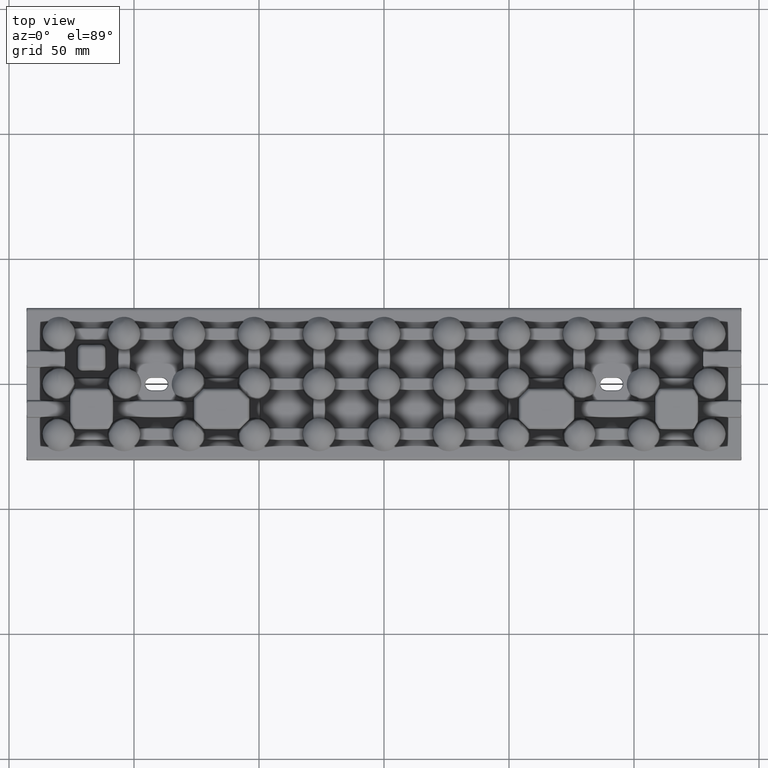
[diagram: clean part render]
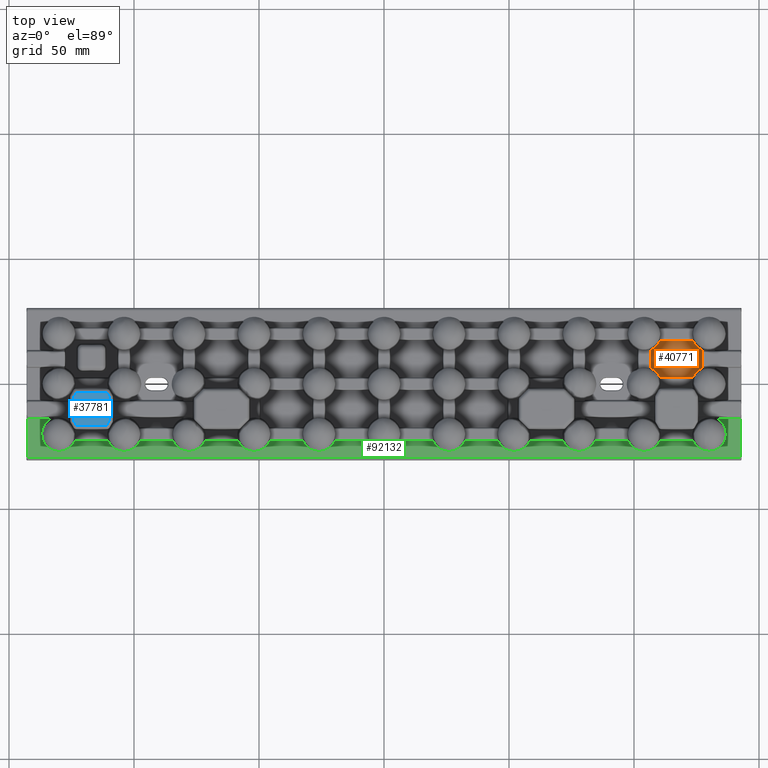
[diagram: same view with three faces highlighted in distinct colors, each labeled with its STEP entity id]
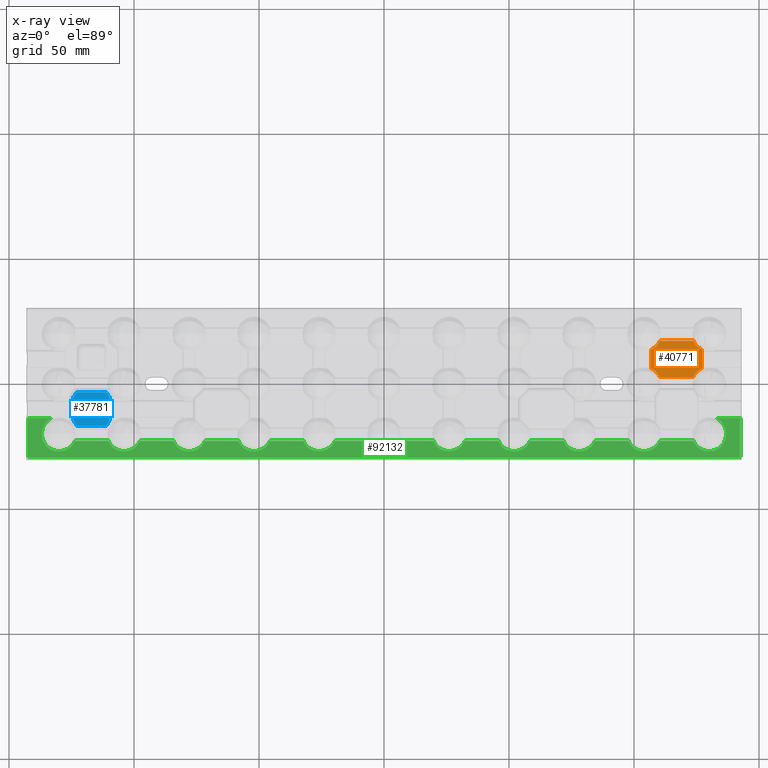
[diagram: x-ray of the same camera — body ghosted, the three highlighted faces saturated]
A machine part, top view with three faces highlighted in distinct colors.
The next image is the same camera in x-ray (body ghosted, the three faces saturated) — at least one of them is partly hidden behind the body in this view.
Their STEP definitions:

[orange] entity #40771 — the highlighted planar face has unit normal (-0, 0, 1).
#781 = CARTESIAN_POINT ( 'NONE',  ( 125.4295885324245600, 5.199171781234180200, 1.999999999999997800 ) ) ;
#2349 = CARTESIAN_POINT ( 'NONE',  ( 108.2348334340244000, 14.52388461563276500, 1.999999999999997100 ) ) ;
#2422 = CARTESIAN_POINT ( 'NONE',  ( 108.5793522363161700, 5.205751131468032300, 2.000000000000265600 ) ) ;
#2487 = VERTEX_POINT ( 'NONE', #93942 ) ;
#3597 = EDGE_CURVE ( 'NONE', #2487, #107201, #91465, .T. ) ;
#7356 = CARTESIAN_POINT ( 'NONE',  ( 123.6840336361162800, 17.25857780629792200, 2.000000000000000000 ) ) ;
#9135 = CARTESIAN_POINT ( 'NONE',  ( 124.8090842976517400, 4.589117766733471300, 2.000000000000000400 ) ) ;
#10688 = CARTESIAN_POINT ( 'NONE',  ( 108.7326880621173900, 14.94879729116232300, 2.000000000000000400 ) ) ;
#10761 = CARTESIAN_POINT ( 'NONE',  ( 107.5302825986381500, 5.963965178687660200, 2.000000000000000400 ) ) ;
#11698 = DIRECTION ( 'NONE',  ( 0.0000000000000000000, 1.000000000000000000, -0.0000000000000000000 ) ) ;
#12290 = VERTEX_POINT ( 'NONE', #86845 ) ;
#12671 = DIRECTION ( 'NONE',  ( 0.0000000000000000000, -1.000000000000000000, 0.0000000000000000000 ) ) ;
#13041 = CARTESIAN_POINT ( 'NONE',  ( 106.7414221937016700, 5.564171097297414500, 2.000000000000000000 ) ) ;
#13171 = VERTEX_POINT ( 'NONE', #21759 ) ;
#15614 = CARTESIAN_POINT ( 'NONE',  ( 110.3159663166993300, 2.741422193701768900, 2.000000000000000000 ) ) ;
#15773 = CARTESIAN_POINT ( 'NONE',  ( 124.0566579510430100, 16.47325496489525400, 1.999999999999999600 ) ) ;
#16125 = LINE ( 'NONE', #46274, #82674 ) ;
#17598 = CARTESIAN_POINT ( 'NONE',  ( 124.0600741587358000, 3.532772700148112800, 1.999999999999999600 ) ) ;
#18892 = CARTESIAN_POINT ( 'NONE',  ( 110.3159663166993300, 2.741422193701768900, 2.000000000000000000 ) ) ;
#19173 = CARTESIAN_POINT ( 'NONE',  ( 109.4620719320071500, 15.74603682573988700, 2.000000000000000000 ) ) ;
#19246 = CARTESIAN_POINT ( 'NONE',  ( 106.7414221937016700, 6.345385911169486800, 2.000000000000000000 ) ) ;
#20670 = CARTESIAN_POINT ( 'NONE',  ( 0.0000000000000000000, 0.0000000000000000000, 2.000000000000000000 ) ) ;
#21759 = CARTESIAN_POINT ( 'NONE',  ( 127.2585778062980900, 6.345385939632604900, 2.000000000000000000 ) ) ;
#22939 = B_SPLINE_CURVE_WITH_KNOTS ( 'NONE', 3,
 ( #83956, #25613, #42407, #100764, #50810, #781, #59119, #9135, #67526, #17598, #75940, #25972 ),
 .UNSPECIFIED., .F., .F.,
 ( 4, 2, 2, 2, 2, 4 ),
 ( 6.938893903907228400E-018, 0.001295068706186249400, 0.001942603059279335600, 0.002590137412372422000, 0.003885206118558621200, 0.005180274824744820500 ),
 .UNSPECIFIED. ) ;
#24180 = CARTESIAN_POINT ( 'NONE',  ( 124.5418202509171000, 15.75793536946769000, 2.000000000000313500 ) ) ;
#25334 = LINE ( 'NONE', #92453, #89265 ) ;
#25446 = VECTOR ( 'NONE', #11698, 1000.000000000000000 ) ;
#25613 = CARTESIAN_POINT ( 'NONE',  ( 126.8558876917480200, 6.174376041626775400, 2.000000000000000000 ) ) ;
#25972 = CARTESIAN_POINT ( 'NONE',  ( 123.6840336361160800, 2.741422193701768900, 2.000000000000000000 ) ) ;
#27179 = CARTESIAN_POINT ( 'NONE',  ( 107.1441122992977300, 13.82562399316670100, 1.999999999999999600 ) ) ;
#27543 = CARTESIAN_POINT ( 'NONE',  ( 110.1466400145269400, 16.85538642735480900, 2.000000000000000000 ) ) ;
#28097 = CARTESIAN_POINT ( 'NONE',  ( 123.6840336361162800, 17.25857780629792200, 2.000000000000000000 ) ) ;
#31153 = ORIENTED_EDGE ( 'NONE', *, *, #3597, .T. ) ;
#31610 = EDGE_CURVE ( 'NONE', #60464, #12290, #16125, .T. ) ;
#32524 = ORIENTED_EDGE ( 'NONE', *, *, #38078, .F. ) ;
#32544 = CARTESIAN_POINT ( 'NONE',  ( 124.9623981647506700, 15.25623877088983300, 2.000000000000265600 ) ) ;
#35581 = CARTESIAN_POINT ( 'NONE',  ( 106.7414221937016700, 13.65461408883046900, 2.000000000000000000 ) ) ;
#35658 = CARTESIAN_POINT ( 'NONE',  ( 109.9433419943666500, 3.526745018182976900, 2.000000000000000400 ) ) ;
#38078 = EDGE_CURVE ( 'NONE', #13171, #77269, #22939, .T. ) ;
#40576 = CARTESIAN_POINT ( 'NONE',  ( 123.8533718991994000, 16.85535792656598300, 2.000000000000000000 ) ) ;
#40771 = ADVANCED_FACE ( 'NONE', ( #101344 ), #45810, .T. ) ;
#40940 = CARTESIAN_POINT ( 'NONE',  ( 125.7532065096033200, 14.52009013290673600, 1.999999999999999600 ) ) ;
#42067 = CARTESIAN_POINT ( 'NONE',  ( 127.2585778062980900, 13.65461406036736000, 2.000000000000000000 ) ) ;
#42407 = CARTESIAN_POINT ( 'NONE',  ( 126.4758917177420200, 5.967544364496381700, 2.000000000000001300 ) ) ;
#44042 = CARTESIAN_POINT ( 'NONE',  ( 109.4581796940015900, 4.242064598854191200, 2.000000000000314000 ) ) ;
#45810 = PLANE ( 'NONE',  #100873 ) ;
#46274 = CARTESIAN_POINT ( 'NONE',  ( 109.5641710972971300, 17.25857780629792200, 2.000000000000000000 ) ) ;
#46883 = B_SPLINE_CURVE_WITH_KNOTS ( 'NONE', 3,
 ( #35581, #27179, #102317, #52369, #2349, #60679, #10688, #69098, #19173, #77487, #27543, #85860 ),
 .UNSPECIFIED., .F., .F.,
 ( 4, 2, 2, 2, 2, 4 ),
 ( 3.469446951953614200E-018, 0.001295068689349862000, 0.001942603034024772600, 0.002590137378699682900, 0.003885206068049533000, 0.005180274757399382300 ),
 .UNSPECIFIED. ) ;
#47132 = VECTOR ( 'NONE', #12671, 1000.000000000000000 ) ;
#48726 = EDGE_CURVE ( 'NONE', #94732, #107201, #51060, .T. ) ;
#49112 = B_SPLINE_CURVE_WITH_KNOTS ( 'NONE', 3,
 ( #7356, #40576, #15773, #74114, #24180, #82505, #32544, #90870, #40940, #99272, #49350, #107731 ),
 .UNSPECIFIED., .F., .F.,
 ( 4, 2, 2, 2, 2, 4 ),
 ( 0.0000000000000000000, 0.001295481799448369100, 0.001943222699172542200, 0.002590963598896711300, 0.003886445398345049300, 0.005181927197793386900 ),
 .UNSPECIFIED. ) ;
#49350 = CARTESIAN_POINT ( 'NONE',  ( 126.8559505659827800, 13.82559725765201400, 2.000000000000004000 ) ) ;
#50810 = CARTESIAN_POINT ( 'NONE',  ( 125.7651665287264400, 5.476115432131766000, 1.999999999999997300 ) ) ;
#50913 = DIRECTION ( 'NONE',  ( 1.000000000000000000, -0.0000000000000000000, 0.0000000000000000000 ) ) ;
#51060 = B_SPLINE_CURVE_WITH_KNOTS ( 'NONE', 3,
 ( #18892, #68810, #35658, #94000, #44042, #102402, #52439, #2422, #60756, #10761, #69168, #19246 ),
 .UNSPECIFIED., .F., .F.,
 ( 4, 2, 2, 2, 2, 4 ),
 ( 2.221529986854170700E-017, 0.001295481781743275200, 0.001943222672614891400, 0.002590963563486507800, 0.003886445345229766700, 0.005181927126973026900 ),
 .UNSPECIFIED. ) ;
#52369 = CARTESIAN_POINT ( 'NONE',  ( 108.0612967249425200, 14.39448532430899900, 1.999999999999998700 ) ) ;
#52439 = CARTESIAN_POINT ( 'NONE',  ( 109.0376017831242900, 4.743761187528841500, 2.000000000000265100 ) ) ;
#52877 = ORIENTED_EDGE ( 'NONE', *, *, #31610, .T. ) ;
#54222 = DIRECTION ( 'NONE',  ( 1.000000000000000000, 0.0000000000000000000, 0.0000000000000000000 ) ) ;
#55420 = ORIENTED_EDGE ( 'NONE', *, *, #78975, .T. ) ;
#58364 = CARTESIAN_POINT ( 'NONE',  ( 106.7414221937016700, 6.345385911169486800, 2.000000000000000000 ) ) ;
#59119 = CARTESIAN_POINT ( 'NONE',  ( 125.2673118897253200, 5.051202754931849400, 2.000000000000001800 ) ) ;
#59248 = EDGE_LOOP ( 'NONE', ( #32524, #55420, #95530, #52877, #86237, #31153, #91230, #65726 ) ) ;
#60464 = VERTEX_POINT ( 'NONE', #28097 ) ;
#60679 = CARTESIAN_POINT ( 'NONE',  ( 108.5704114226095200, 14.80082826617127100, 1.999999999999996700 ) ) ;
#60756 = CARTESIAN_POINT ( 'NONE',  ( 108.2467934511521300, 5.479909819716256800, 2.000000000000000000 ) ) ;
#61677 = CARTESIAN_POINT ( 'NONE',  ( 127.2585778062980900, 14.43582890270262800, 2.000000000000000000 ) ) ;
#65726 = ORIENTED_EDGE ( 'NONE', *, *, #93706, .T. ) ;
#65729 = CARTESIAN_POINT ( 'NONE',  ( 123.6840336361160800, 2.741422193701768900, 2.000000000000000000 ) ) ;
#67526 = CARTESIAN_POINT ( 'NONE',  ( 124.5379280131334800, 4.253963207415537800, 2.000000000000000000 ) ) ;
#68810 = CARTESIAN_POINT ( 'NONE',  ( 110.1466280488789000, 3.144642064651740100, 2.000000000000000000 ) ) ;
#69098 = CARTESIAN_POINT ( 'NONE',  ( 109.1909156486231000, 15.41088227299898400, 2.000000000000000000 ) ) ;
#69168 = CARTESIAN_POINT ( 'NONE',  ( 107.1440494248759400, 6.174402707635462000, 2.000000000000002700 ) ) ;
#71034 = EDGE_CURVE ( 'NONE', #2487, #12290, #46883, .T. ) ;
#74114 = CARTESIAN_POINT ( 'NONE',  ( 124.4139738299499200, 15.93268726301598500, 1.999999999999999600 ) ) ;
#75940 = CARTESIAN_POINT ( 'NONE',  ( 123.8533599334595600, 3.144613581207444900, 2.000000000000000000 ) ) ;
#77269 = VERTEX_POINT ( 'NONE', #65729 ) ;
#77487 = CARTESIAN_POINT ( 'NONE',  ( 109.9399257867717900, 16.46722731720753100, 1.999999999999999600 ) ) ;
#78975 = EDGE_CURVE ( 'NONE', #13171, #82191, #94632, .T. ) ;
#82191 = VERTEX_POINT ( 'NONE', #42067 ) ;
#82505 = CARTESIAN_POINT ( 'NONE',  ( 124.8158158753895900, 15.41981666438226400, 2.000000000000313500 ) ) ;
#82674 = VECTOR ( 'NONE', #104646, 1000.000000000000000 ) ;
#83956 = CARTESIAN_POINT ( 'NONE',  ( 127.2585778062980900, 6.345385939632604900, 2.000000000000000000 ) ) ;
#85860 = CARTESIAN_POINT ( 'NONE',  ( 110.3159663166992600, 17.25857780629792200, 2.000000000000000000 ) ) ;
#86237 = ORIENTED_EDGE ( 'NONE', *, *, #71034, .F. ) ;
#86845 = CARTESIAN_POINT ( 'NONE',  ( 110.3159663166992600, 17.25857780629792200, 2.000000000000000000 ) ) ;
#89265 = VECTOR ( 'NONE', #50913, 1000.000000000000000 ) ;
#90870 = CARTESIAN_POINT ( 'NONE',  ( 125.4206477170258700, 14.79424882064620700, 2.000000000000265600 ) ) ;
#91230 = ORIENTED_EDGE ( 'NONE', *, *, #48726, .F. ) ;
#91465 = LINE ( 'NONE', #13041, #47132 ) ;
#92453 = CARTESIAN_POINT ( 'NONE',  ( 124.4358289027025000, 2.741422193701768900, 2.000000000000000000 ) ) ;
#93706 = EDGE_CURVE ( 'NONE', #94732, #77269, #25334, .T. ) ;
#93942 = CARTESIAN_POINT ( 'NONE',  ( 106.7414221937016700, 13.65461408883046900, 2.000000000000000000 ) ) ;
#94000 = CARTESIAN_POINT ( 'NONE',  ( 109.5860261146315400, 4.067312708833366500, 2.000000000000000900 ) ) ;
#94632 = LINE ( 'NONE', #61677, #25446 ) ;
#94732 = VERTEX_POINT ( 'NONE', #15614 ) ;
#95530 = ORIENTED_EDGE ( 'NONE', *, *, #106089, .F. ) ;
#99272 = CARTESIAN_POINT ( 'NONE',  ( 126.4697173812430400, 14.03603478032695900, 2.000000000000000000 ) ) ;
#100764 = CARTESIAN_POINT ( 'NONE',  ( 125.9387032421691000, 5.605514722436474500, 2.000000000000000900 ) ) ;
#100873 = AXIS2_PLACEMENT_3D ( 'NONE', #20670, #104176, #54222 ) ;
#101344 = FACE_OUTER_BOUND ( 'NONE', #59248, .T. ) ;
#102317 = CARTESIAN_POINT ( 'NONE',  ( 107.5241082631810900, 14.03245567687070100, 1.999999999999997300 ) ) ;
#102402 = CARTESIAN_POINT ( 'NONE',  ( 109.1841840713217500, 4.580183297232970600, 2.000000000000314000 ) ) ;
#104176 = DIRECTION ( 'NONE',  ( -0.0000000000000000000, 0.0000000000000000000, 1.000000000000000000 ) ) ;
#104646 = DIRECTION ( 'NONE',  ( -1.000000000000000000, 0.0000000000000000000, 0.0000000000000000000 ) ) ;
#106089 = EDGE_CURVE ( 'NONE', #60464, #82191, #49112, .T. ) ;
#107201 = VERTEX_POINT ( 'NONE', #58364 ) ;
#107731 = CARTESIAN_POINT ( 'NONE',  ( 127.2585778062980900, 13.65461406036736000, 2.000000000000000000 ) ) ;

[blue] entity #37781 — the highlighted planar face has unit normal (0, 0, -1).
#449 = CARTESIAN_POINT ( 'NONE',  ( -109.8284478406623800, 0.0000000000000000000, 5.500000000000000000 ) ) ;
#1273 = ORIENTED_EDGE ( 'NONE', *, *, #58655, .F. ) ;
#2824 = VERTEX_POINT ( 'NONE', #82797 ) ;
#3267 = DIRECTION ( 'NONE',  ( 0.4999999999999970000, -0.8660254037844404800, -0.0000000000000000000 ) ) ;
#4338 = CARTESIAN_POINT ( 'NONE',  ( -76.00396507715186100, 43.88090969677219300, 5.500000000000000000 ) ) ;
#4772 = DIRECTION ( 'NONE',  ( -0.0000000000000000000, 1.000000000000000000, -0.0000000000000000000 ) ) ;
#5076 = VERTEX_POINT ( 'NONE', #34917 ) ;
#6591 = CARTESIAN_POINT ( 'NONE',  ( 0.0000000000000000000, -3.328447840662458500, 5.500000000000000000 ) ) ;
#8735 = ORIENTED_EDGE ( 'NONE', *, *, #86599, .F. ) ;
#10403 = CARTESIAN_POINT ( 'NONE',  ( -110.9639452298710200, -3.328447840662458500, 5.500000000000000000 ) ) ;
#11215 = EDGE_CURVE ( 'NONE', #17511, #2824, #81672, .T. ) ;
#11545 = VECTOR ( 'NONE', #58806, 1000.000000000000000 ) ;
#12484 = LINE ( 'NONE', #15391, #103896 ) ;
#13007 = CARTESIAN_POINT ( 'NONE',  ( -123.0360547701287300, -3.328447840662457600, 5.500000000000000000 ) ) ;
#13574 = ORIENTED_EDGE ( 'NONE', *, *, #91657, .F. ) ;
#15391 = CARTESIAN_POINT ( 'NONE',  ( -99.49603492284869300, -57.44406254600664100, 5.500000000000000000 ) ) ;
#16811 = VERTEX_POINT ( 'NONE', #66279 ) ;
#17511 = VERTEX_POINT ( 'NONE', #108120 ) ;
#17703 = LINE ( 'NONE', #76106, #59404 ) ;
#17767 = EDGE_CURVE ( 'NONE', #96845, #16811, #100837, .T. ) ;
#22075 = CARTESIAN_POINT ( 'NONE',  ( 0.0000000000000000000, 0.0000000000000000000, 5.500000000000000000 ) ) ;
#22937 = ORIENTED_EDGE ( 'NONE', *, *, #17767, .F. ) ;
#23432 = DIRECTION ( 'NONE',  ( 1.000000000000000000, -0.0000000000000000000, -0.0000000000000000000 ) ) ;
#26751 = VERTEX_POINT ( 'NONE', #13007 ) ;
#27641 = ORIENTED_EDGE ( 'NONE', *, *, #85722, .F. ) ;
#28382 = EDGE_CURVE ( 'NONE', #43516, #100300, #33395, .T. ) ;
#32857 = CARTESIAN_POINT ( 'NONE',  ( -90.83578088500434000, 52.44406254600670500, 5.500000000000000000 ) ) ;
#33395 = LINE ( 'NONE', #4338, #75136 ) ;
#34282 = VECTOR ( 'NONE', #3267, 1000.000000000000100 ) ;
#34917 = CARTESIAN_POINT ( 'NONE',  ( -123.0360547701287600, -16.67155215933749800, 5.500000000000000000 ) ) ;
#37781 = ADVANCED_FACE ( 'NONE', ( #67487 ), #46481, .F. ) ;
#38396 = CARTESIAN_POINT ( 'NONE',  ( -109.8284478406623800, -14.70481298936628000, 5.500000000000000000 ) ) ;
#38818 = DIRECTION ( 'NONE',  ( 0.0000000000000000000, 0.0000000000000000000, -1.000000000000000000 ) ) ;
#39412 = ORIENTED_EDGE ( 'NONE', *, *, #11215, .F. ) ;
#42511 = VECTOR ( 'NONE', #4772, 1000.000000000000000 ) ;
#42569 = DIRECTION ( 'NONE',  ( -1.000000000000000000, -0.0000000000000000000, -0.0000000000000000000 ) ) ;
#43516 = VERTEX_POINT ( 'NONE', #38396 ) ;
#46481 = PLANE ( 'NONE',  #57966 ) ;
#50763 = EDGE_CURVE ( 'NONE', #5076, #17511, #12484, .T. ) ;
#53470 = VECTOR ( 'NONE', #82791, 1000.000000000000100 ) ;
#54363 = DIRECTION ( 'NONE',  ( -0.4999999999999970000, -0.8660254037844404800, -0.0000000000000000000 ) ) ;
#57966 = AXIS2_PLACEMENT_3D ( 'NONE', #22075, #38818, #97154 ) ;
#58655 = EDGE_CURVE ( 'NONE', #26751, #96845, #77009, .T. ) ;
#58806 = DIRECTION ( 'NONE',  ( -0.0000000000000000000, -1.000000000000000000, -0.0000000000000000000 ) ) ;
#59404 = VECTOR ( 'NONE', #42569, 1000.000000000000000 ) ;
#61275 = ORIENTED_EDGE ( 'NONE', *, *, #28382, .F. ) ;
#61601 = CARTESIAN_POINT ( 'NONE',  ( -84.66421911499617200, -48.88090969677211500, 5.500000000000000000 ) ) ;
#62387 = CARTESIAN_POINT ( 'NONE',  ( -110.9639452298710300, -16.67155215933749800, 5.500000000000000000 ) ) ;
#66279 = CARTESIAN_POINT ( 'NONE',  ( -109.8284478406623800, -5.295187010633648100, 5.500000000000000000 ) ) ;
#67487 = FACE_OUTER_BOUND ( 'NONE', #74460, .T. ) ;
#74460 = EDGE_LOOP ( 'NONE', ( #8735, #22937, #1273, #27641, #39412, #79148, #13574, #61275 ) ) ;
#75136 = VECTOR ( 'NONE', #54363, 1000.000000000000100 ) ;
#75554 = LINE ( 'NONE', #449, #11545 ) ;
#76106 = CARTESIAN_POINT ( 'NONE',  ( 0.0000000000000000000, -16.67155215933749800, 5.500000000000000000 ) ) ;
#77009 = LINE ( 'NONE', #6591, #99209 ) ;
#79148 = ORIENTED_EDGE ( 'NONE', *, *, #50763, .F. ) ;
#81672 = LINE ( 'NONE', #104764, #42511 ) ;
#82791 = DIRECTION ( 'NONE',  ( 0.4999999999999970000, 0.8660254037844404800, -0.0000000000000000000 ) ) ;
#82797 = CARTESIAN_POINT ( 'NONE',  ( -124.1715521593373900, -5.295187010633689800, 5.500000000000000000 ) ) ;
#85722 = EDGE_CURVE ( 'NONE', #2824, #26751, #95242, .T. ) ;
#86599 = EDGE_CURVE ( 'NONE', #16811, #43516, #75554, .T. ) ;
#90132 = DIRECTION ( 'NONE',  ( -0.4999999999999970000, 0.8660254037844404800, -0.0000000000000000000 ) ) ;
#91657 = EDGE_CURVE ( 'NONE', #100300, #5076, #17703, .T. ) ;
#95242 = LINE ( 'NONE', #32857, #53470 ) ;
#96845 = VERTEX_POINT ( 'NONE', #10403 ) ;
#97154 = DIRECTION ( 'NONE',  ( 1.000000000000000000, 0.0000000000000000000, 0.0000000000000000000 ) ) ;
#99209 = VECTOR ( 'NONE', #23432, 1000.000000000000000 ) ;
#100300 = VERTEX_POINT ( 'NONE', #62387 ) ;
#100837 = LINE ( 'NONE', #61601, #34282 ) ;
#103896 = VECTOR ( 'NONE', #90132, 1000.000000000000100 ) ;
#104764 = CARTESIAN_POINT ( 'NONE',  ( -124.1715521593373900, 0.0000000000000000000, 5.500000000000000000 ) ) ;
#108120 = CARTESIAN_POINT ( 'NONE',  ( -124.1715521593373900, -14.70481298936630000, 5.500000000000000000 ) ) ;

[green] entity #92132 — the highlighted planar face has unit normal (-0, 0, 1).
#129 = VECTOR ( 'NONE', #2417, 1000.000000000000000 ) ;
#314 = CARTESIAN_POINT ( 'NONE',  ( 47.65245128752371800, -25.39348040349520000, 2.000000000000002200 ) ) ;
#483 = CARTESIAN_POINT ( 'NONE',  ( -82.34754871247622500, -25.39348040349523900, 1.999999999999998700 ) ) ;
#681 = CARTESIAN_POINT ( 'NONE',  ( 54.61608854845390200, -26.40594480093264500, 2.000000000000000400 ) ) ;
#838 = CARTESIAN_POINT ( 'NONE',  ( -32.03490861464356200, -23.35028557133072600, 2.000000000000126600 ) ) ;
#855 = CARTESIAN_POINT ( 'NONE',  ( -75.38391145154602700, -26.40594480093261300, 1.999999999999998700 ) ) ;
#907 = LINE ( 'NONE', #81336, #42713 ) ;
#989 = ORIENTED_EDGE ( 'NONE', *, *, #7615, .T. ) ;
#1163 = CARTESIAN_POINT ( 'NONE',  ( -136.1155611963840200, -16.81061401725421300, 1.999999999999998700 ) ) ;
#1190 = CARTESIAN_POINT ( 'NONE',  ( -27.65886342211146200, -26.71010635983779800, 2.000000000000000000 ) ) ;
#1284 = ORIENTED_EDGE ( 'NONE', *, *, #41501, .F. ) ;
#1532 = CARTESIAN_POINT ( 'NONE',  ( -136.6033684164526100, -21.94261803390059400, 2.000000000000001300 ) ) ;
#1565 = CARTESIAN_POINT ( 'NONE',  ( -20.92741907172151300, -24.71284939042512400, 2.000000000000001300 ) ) ;
#1639 = CARTESIAN_POINT ( 'NONE',  ( 19.96509138535645200, -23.35028557133072300, 2.000000000000126100 ) ) ;
#1885 = CARTESIAN_POINT ( 'NONE',  ( -132.4598265948320400, -26.46367448514056200, 2.000000000000036400 ) ) ;
#2002 = CARTESIAN_POINT ( 'NONE',  ( 25.32720715285509200, -26.87350028430774900, 2.000000000000050200 ) ) ;
#2007 = CARTESIAN_POINT ( 'NONE',  ( -133.0009512623801100, -13.77131854326631800, 2.000000000000000000 ) ) ;
#2076 = CARTESIAN_POINT ( 'NONE',  ( 128.3569383727007100, -26.71115090273822200, 1.999999999999962300 ) ) ;
#2196 = CARTESIAN_POINT ( 'NONE',  ( 97.81295635228767100, -23.04840657610288100, 1.999999999999999600 ) ) ;
#2255 = CARTESIAN_POINT ( 'NONE',  ( -124.8344225078911600, -24.63101510787237600, 2.000000000000000000 ) ) ;
#2354 = CARTESIAN_POINT ( 'NONE',  ( 31.69014423645628000, -23.92467732994073900, 2.000000000000016000 ) ) ;
#2417 = DIRECTION ( 'NONE',  ( -1.000000000000000000, 0.0000000000000000000, -0.0000000000000000000 ) ) ;
#2429 = CARTESIAN_POINT ( 'NONE',  ( 134.3633224904523300, -25.37728344801132300, 1.999999999999996200 ) ) ;
#2541 = CARTESIAN_POINT ( 'NONE',  ( 101.3799802645693500, -26.40442383479517100, 2.000000000000251400 ) ) ;
#2588 = EDGE_CURVE ( 'NONE', #94761, #19589, #74623, .T. ) ;
#2786 = CARTESIAN_POINT ( 'NONE',  ( 136.8444498960120100, -19.19061381960626300, 1.999999999999999100 ) ) ;
#2887 = EDGE_CURVE ( 'NONE', #74071, #40191, #66796, .T. ) ;
#2901 = CARTESIAN_POINT ( 'NONE',  ( 108.3419954705308900, -25.39795375419123500, 2.000000000000000400 ) ) ;
#3143 = CARTESIAN_POINT ( 'NONE',  ( 133.0009511878356200, -13.77131854326631800, 2.000000000000000000 ) ) ;
#3212 = CARTESIAN_POINT ( 'NONE',  ( 0.0000000000000000000, -22.74142219370180100, 2.000000000000000000 ) ) ;
#3248 = VECTOR ( 'NONE', #56293, 1000.000000000000000 ) ;
#4415 = CARTESIAN_POINT ( 'NONE',  ( -71.68403368330061200, -22.74142219370179800, 2.000000000000000000 ) ) ;
#5431 = VECTOR ( 'NONE', #6732, 1000.000000000000000 ) ;
#5945 = CARTESIAN_POINT ( 'NONE',  ( -4.846810314186509300, -24.94780778961889900, 2.000000000000000000 ) ) ;
#6264 = VECTOR ( 'NONE', #61547, 1000.000000000000000 ) ;
#6309 = CARTESIAN_POINT ( 'NONE',  ( 2.299380020169843300, -26.52378527677917600, 2.000000000000000400 ) ) ;
#6732 = DIRECTION ( 'NONE',  ( -1.000000000000000000, 0.0000000000000000000, -0.0000000000000000000 ) ) ;
#6793 = CARTESIAN_POINT ( 'NONE',  ( 72.92337602965417900, -24.70830155083606500, 2.000000000000000400 ) ) ;
#7003 = CARTESIAN_POINT ( 'NONE',  ( -58.31596636388391600, -22.74142219370179800, 2.000000000000000000 ) ) ;
#7079 = CARTESIAN_POINT ( 'NONE',  ( 0.0000000000000000000, 0.0000000000000000000, 2.000000000000000000 ) ) ;
#7163 = CARTESIAN_POINT ( 'NONE',  ( 79.33159713838077200, -26.80502345389743400, 2.000000000000000400 ) ) ;
#7318 = CARTESIAN_POINT ( 'NONE',  ( -105.3329828712671100, -26.77987721486596900, 2.000000000000048800 ) ) ;
#7374 = CARTESIAN_POINT ( 'NONE',  ( -55.22706144101980600, -26.12530864809897200, 2.000000000000250000 ) ) ;
#7523 = CARTESIAN_POINT ( 'NONE',  ( 84.31596631669936000, -22.74142219370180100, 2.000000000000000000 ) ) ;
#7615 = EDGE_CURVE ( 'NONE', #64418, #43283, #48094, .T. ) ;
#7669 = CARTESIAN_POINT ( 'NONE',  ( -98.50381137340660600, -24.19940416750636900, 2.000000000000001300 ) ) ;
#7721 = CARTESIAN_POINT ( 'NONE',  ( -47.92813752552462600, -25.60377777844992800, 2.000000000000345100 ) ) ;
#8473 = LINE ( 'NONE', #96808, #3248 ) ;
#8696 = CARTESIAN_POINT ( 'NONE',  ( 48.48139279403720500, -25.96433863888073600, 2.000000000000001300 ) ) ;
#8861 = CARTESIAN_POINT ( 'NONE',  ( -81.51860720596279500, -25.96433863888074700, 2.000000000000000900 ) ) ;
#8914 = DIRECTION ( 'NONE',  ( 1.000000000000000000, -0.0000000000000000000, 0.0000000000000000000 ) ) ;
#9035 = CARTESIAN_POINT ( 'NONE',  ( 55.51261769315587500, -25.96782556546238800, 2.000000000000344200 ) ) ;
#9161 = CARTESIAN_POINT ( 'NONE',  ( -133.5060754034458600, -14.01131568799469400, 2.000000000000000000 ) ) ;
#9190 = CARTESIAN_POINT ( 'NONE',  ( -32.31596636388393100, -22.74142219370179800, 2.000000000000000000 ) ) ;
#9210 = CARTESIAN_POINT ( 'NONE',  ( -74.48738230684408300, -25.96782556546237300, 2.000000000000345100 ) ) ;
#9512 = CARTESIAN_POINT ( 'NONE',  ( -136.5514408729395700, -17.83335381050261900, 1.999999999999999600 ) ) ;
#9523 = ORIENTED_EDGE ( 'NONE', *, *, #51980, .F. ) ;
#9540 = CARTESIAN_POINT ( 'NONE',  ( -26.67279284714493300, -26.87350028430774200, 2.000000000000048400 ) ) ;
#9876 = CARTESIAN_POINT ( 'NONE',  ( -136.3298738417024700, -22.72204378927655800, 1.999999999999999600 ) ) ;
#9910 = CARTESIAN_POINT ( 'NONE',  ( -20.30985576354370900, -23.92467732994071000, 2.000000000000016900 ) ) ;
#9987 = CARTESIAN_POINT ( 'NONE',  ( 20.50212720962844800, -24.19700557024060900, 2.000000000000000900 ) ) ;
#10066 = CARTESIAN_POINT ( 'NONE',  ( 123.6840336361161300, -22.74142219370180100, 2.000000000000000000 ) ) ;
#10235 = ORIENTED_EDGE ( 'NONE', *, *, #80176, .F. ) ;
#10240 = CARTESIAN_POINT ( 'NONE',  ( -131.3938285666125400, -26.78247487710185800, 1.999999999999999600 ) ) ;
#10341 = CARTESIAN_POINT ( 'NONE',  ( 26.67243104813864100, -26.89737252774205300, 2.000000000000000000 ) ) ;
#10422 = CARTESIAN_POINT ( 'NONE',  ( 129.1720295475812700, -26.85470857678982500, 2.000000000000000900 ) ) ;
#10589 = CARTESIAN_POINT ( 'NONE',  ( -124.1867237278083400, -23.72881967272088100, 2.000000000000000400 ) ) ;
#10620 = CARTESIAN_POINT ( 'NONE',  ( 6.315966316699402200, -22.74142219370180100, 2.000000000000000000 ) ) ;
#10692 = CARTESIAN_POINT ( 'NONE',  ( 32.18687878677702900, -23.04879900714432800, 2.000000000000020000 ) ) ;
#10770 = CARTESIAN_POINT ( 'NONE',  ( 135.1740908361412000, -24.62204109544697800, 1.999999999999999600 ) ) ;
#10893 = CARTESIAN_POINT ( 'NONE',  ( 102.3411365778884900, -26.71010635983776600, 1.999999999999999100 ) ) ;
#11135 = CARTESIAN_POINT ( 'NONE',  ( 136.5519977315799200, -17.83537268655120300, 2.000000000000000000 ) ) ;
#11237 = LINE ( 'NONE', #47248, #94827 ) ;
#11253 = CARTESIAN_POINT ( 'NONE',  ( 109.0725809282785000, -24.71284939042514100, 2.000000000000000400 ) ) ;
#12330 = ORIENTED_EDGE ( 'NONE', *, *, #92480, .T. ) ;
#12412 = EDGE_CURVE ( 'NONE', #76236, #67714, #63522, .T. ) ;
#12759 = EDGE_CURVE ( 'NONE', #70480, #94761, #21508, .T. ) ;
#13523 = EDGE_CURVE ( 'NONE', #28088, #23127, #88213, .T. ) ;
#14175 = DIRECTION ( 'NONE',  ( -1.000000000000000000, -0.0000000000000000000, -0.0000000000000000000 ) ) ;
#14349 = CARTESIAN_POINT ( 'NONE',  ( -4.077728730500201200, -25.59953833170886400, 1.999999999999998700 ) ) ;
#14570 = CARTESIAN_POINT ( 'NONE',  ( -6.315966363883911000, -22.74142219370179800, 2.000000000000000000 ) ) ;
#14707 = CARTESIAN_POINT ( 'NONE',  ( 3.221422544793255400, -26.12818340366434800, 2.000000000000000400 ) ) ;
#15207 = CARTESIAN_POINT ( 'NONE',  ( 73.65245128752361800, -25.39348040349513300, 2.000000000000000400 ) ) ;
#15235 = CARTESIAN_POINT ( 'NONE',  ( -142.4984859507544300, 0.0000000000000000000, 2.000000000000000000 ) ) ;
#15292 = DIRECTION ( 'NONE',  ( -0.0000000000000000000, 1.000000000000000000, -0.0000000000000000000 ) ) ;
#15366 = CARTESIAN_POINT ( 'NONE',  ( -109.6895642475880700, -23.92543141915733800, 2.000000000000124300 ) ) ;
#15582 = CARTESIAN_POINT ( 'NONE',  ( 80.61608854845384500, -26.40594480093265500, 2.000000000000000000 ) ) ;
#15735 = CARTESIAN_POINT ( 'NONE',  ( -104.3366749850126600, -26.89732937789191100, 2.000000000000000400 ) ) ;
#15789 = CARTESIAN_POINT ( 'NONE',  ( -54.30187013194031900, -26.52287293393027700, 1.999999999999999600 ) ) ;
#16081 = CARTESIAN_POINT ( 'NONE',  ( -97.96338431144572200, -23.34722910154697200, 2.000000000000016900 ) ) ;
#16137 = CARTESIAN_POINT ( 'NONE',  ( -47.15811992983356800, -24.95268244505924900, 1.999999999999998700 ) ) ;
#16599 = CARTESIAN_POINT ( 'NONE',  ( -84.18704364771232900, -23.04840657610292400, 2.000000000000001300 ) ) ;
#17136 = CARTESIAN_POINT ( 'NONE',  ( 49.37998026456939700, -26.40442383479520000, 2.000000000000250900 ) ) ;
#17306 = CARTESIAN_POINT ( 'NONE',  ( -80.62001973543051700, -26.40442383479520700, 2.000000000000250900 ) ) ;
#17420 = B_SPLINE_CURVE_WITH_KNOTS ( 'NONE', 3,
 ( #7003, #48649, #82166, #32215, #90523, #40594, #98926, #49014, #107388, #57325, #7374, #65702, #15789, #74132, #24200, #82521, #32560, #90890, #40956, #99293, #49368, #107749, #57679, #7721, #66055, #16137, #74490, #24548, #82857, #32922, #91242, #41300 ),
 .UNSPECIFIED., .F., .F.,
 ( 4, 2, 2, 2, 2, 2, 2, 2, 2, 2, 2, 2, 2, 2, 2, 4 ),
 ( 0.01050679112534165900, 0.01150546911043176300, 0.01250414709552186700, 0.01350282508061197200, 0.01450150306570207500, 0.01550018105079218100, 0.01649885903588228400, 0.01749753702097238800, 0.01849621500606249400, 0.02049357097624270000, 0.02149224896133280400, 0.02249092694642290700, 0.02348960493151301000, 0.02448828291660311300, 0.02548696090169321600, 0.02648563888678331600 ),
 .UNSPECIFIED. ) ;
#17496 = CARTESIAN_POINT ( 'NONE',  ( 56.34199547053102500, -25.39795375419115000, 2.000000000000000900 ) ) ;
#17507 = CARTESIAN_POINT ( 'NONE',  ( 0.0000000000000000000, -22.74142219370180100, 2.000000000000000000 ) ) ;
#17533 = ORIENTED_EDGE ( 'NONE', *, *, #98020, .F. ) ;
#17650 = CARTESIAN_POINT ( 'NONE',  ( -31.49787279037159100, -24.19700557024057700, 2.000000000000001300 ) ) ;
#17670 = CARTESIAN_POINT ( 'NONE',  ( -73.65800452946895400, -25.39795375419109300, 2.000000000000000900 ) ) ;
#17983 = CARTESIAN_POINT ( 'NONE',  ( -136.8442879062097000, -19.18943984282314100, 2.000000000000000900 ) ) ;
#18015 = CARTESIAN_POINT ( 'NONE',  ( -25.32756895186142300, -26.89737252774207800, 2.000000000000000000 ) ) ;
#18119 = EDGE_CURVE ( 'NONE', #91004, #25805, #44543, .T. ) ;
#18265 = ORIENTED_EDGE ( 'NONE', *, *, #42385, .T. ) ;
#18351 = B_SPLINE_CURVE_WITH_KNOTS ( 'NONE', 3,
 ( #75292, #16599, #33753, #92065, #42122, #100481, #50532, #483, #58836, #8861, #67241, #17306, #75649, #25692, #84032, #34105, #92427, #42478, #100832, #50879, #855, #59196, #9210, #67597, #17670, #76015, #26045, #84390, #34450, #92777, #42835, #101190 ),
 .UNSPECIFIED., .F., .F.,
 ( 4, 2, 2, 2, 2, 2, 2, 2, 2, 2, 2, 2, 2, 2, 2, 4 ),
 ( 0.01050679112534282100, 0.01150546911043305900, 0.01250414709552329600, 0.01350282508061353400, 0.01450150306570377100, 0.01550018105079401000, 0.01649885903588424800, 0.01749753702097448700, 0.01849621500606472200, 0.02049357097624515700, 0.02149224896133539500, 0.02249092694642563000, 0.02348960493151586900, 0.02448828291660610400, 0.02548696090169633900, 0.02648563888678657400 ),
 .UNSPECIFIED. ) ;
#18354 = CARTESIAN_POINT ( 'NONE',  ( -135.9650255285234600, -23.47222478172584200, 2.000000000000000900 ) ) ;
#18382 = CARTESIAN_POINT ( 'NONE',  ( -19.81312121322298800, -23.04879900714431800, 2.000000000000017800 ) ) ;
#18461 = CARTESIAN_POINT ( 'NONE',  ( 21.15318968581348400, -24.94780778961891700, 2.000000000000000000 ) ) ;
#18717 = CARTESIAN_POINT ( 'NONE',  ( -130.0124336682622200, -26.90276030958509400, 1.999999999999999600 ) ) ;
#18822 = CARTESIAN_POINT ( 'NONE',  ( 28.29938002016980600, -26.52378527677919700, 2.000000000000000000 ) ) ;
#18900 = CARTESIAN_POINT ( 'NONE',  ( 130.0058839992342100, -26.90270342841828800, 2.000000000000003600 ) ) ;
#19023 = CARTESIAN_POINT ( 'NONE',  ( 97.96509138535641600, -23.35028557133064800, 2.000000000000124800 ) ) ;
#19079 = CARTESIAN_POINT ( 'NONE',  ( -123.7910177960900700, -22.99616744832065200, 2.000000000000020400 ) ) ;
#19153 = CARTESIAN_POINT ( 'NONE',  ( 142.4984859507544300, -13.77131854326631800, 2.000000000000000000 ) ) ;
#19253 = CARTESIAN_POINT ( 'NONE',  ( 136.1083223698568400, -23.24150079469648800, 1.999999999999999600 ) ) ;
#19363 = CARTESIAN_POINT ( 'NONE',  ( 103.3272071528550400, -26.87350028430773500, 2.000000000000048400 ) ) ;
#19589 = VERTEX_POINT ( 'NONE', #63115 ) ;
#19622 = CARTESIAN_POINT ( 'NONE',  ( 136.1176658894543400, -16.81472492918309300, 2.000000000000013300 ) ) ;
#19733 = CARTESIAN_POINT ( 'NONE',  ( 109.6901442364561900, -23.92467732994085200, 2.000000000000016000 ) ) ;
#19948 = CARTESIAN_POINT ( 'NONE',  ( 133.0009511878356200, -13.77131854326631800, 2.000000000000000000 ) ) ;
#20067 = AXIS2_PLACEMENT_3D ( 'NONE', #7079, #74564, #24613 ) ;
#20487 = ORIENTED_EDGE ( 'NONE', *, *, #29223, .F. ) ;
#20813 = VERTEX_POINT ( 'NONE', #89573 ) ;
#21079 = VERTEX_POINT ( 'NONE', #67973 ) ;
#21508 = LINE ( 'NONE', #88932, #107685 ) ;
#21634 = LINE ( 'NONE', #17507, #63326 ) ;
#22100 = DIRECTION ( 'NONE',  ( -1.000000000000000000, 0.0000000000000000000, -0.0000000000000000000 ) ) ;
#22751 = VECTOR ( 'NONE', #8914, 1000.000000000000000 ) ;
#22795 = CARTESIAN_POINT ( 'NONE',  ( -3.227061441019773100, -26.12530864809900100, 2.000000000000251400 ) ) ;
#23059 = VERTEX_POINT ( 'NONE', #51208 ) ;
#23127 = VERTEX_POINT ( 'NONE', #101890 ) ;
#23151 = CARTESIAN_POINT ( 'NONE',  ( 4.071862474475445900, -25.60377777844989600, 2.000000000000345100 ) ) ;
#23282 = VERTEX_POINT ( 'NONE', #4415 ) ;
#23630 = CARTESIAN_POINT ( 'NONE',  ( 74.48139279403717700, -25.96433863888073600, 1.999999999999999600 ) ) ;
#23779 = CARTESIAN_POINT ( 'NONE',  ( -109.0766239703458600, -24.70830155083607600, 2.000000000000001300 ) ) ;
#23868 = ORIENTED_EDGE ( 'NONE', *, *, #74274, .T. ) ;
#23987 = CARTESIAN_POINT ( 'NONE',  ( 81.51261769315584600, -25.96782556546241200, 2.000000000000344200 ) ) ;
#24138 = CARTESIAN_POINT ( 'NONE',  ( -102.6684028616192300, -26.80502345389742300, 1.999999999999999100 ) ) ;
#24171 = VERTEX_POINT ( 'NONE', #71363 ) ;
#24200 = CARTESIAN_POINT ( 'NONE',  ( -53.33298287126709200, -26.77987721486595900, 2.000000000000049300 ) ) ;
#24494 = CARTESIAN_POINT ( 'NONE',  ( -97.68403368330062600, -22.74142219370179800, 2.000000000000000000 ) ) ;
#24548 = CARTESIAN_POINT ( 'NONE',  ( -46.50381137340664100, -24.19940416750637600, 2.000000000000002200 ) ) ;
#24613 = DIRECTION ( 'NONE',  ( 1.000000000000000000, 0.0000000000000000000, 0.0000000000000000000 ) ) ;
#24773 = CARTESIAN_POINT ( 'NONE',  ( 45.68403363611610500, -22.74142219370180100, 2.000000000000000000 ) ) ;
#25515 = CARTESIAN_POINT ( 'NONE',  ( 50.34113657788854800, -26.71010635983778100, 2.000000000000000900 ) ) ;
#25692 = CARTESIAN_POINT ( 'NONE',  ( -79.65886342211142300, -26.71010635983781300, 2.000000000000000400 ) ) ;
#25805 = VERTEX_POINT ( 'NONE', #30030 ) ;
#25875 = CARTESIAN_POINT ( 'NONE',  ( 57.07258092827851200, -24.71284939042513400, 2.000000000000000000 ) ) ;
#25996 = CARTESIAN_POINT ( 'NONE',  ( -133.9721439145399700, -14.30754895566934700, 1.999999999999997800 ) ) ;
#26025 = CARTESIAN_POINT ( 'NONE',  ( -30.84681031418654500, -24.94780778961892400, 2.000000000000000000 ) ) ;
#26045 = CARTESIAN_POINT ( 'NONE',  ( -72.92741907172154500, -24.71284939042510600, 2.000000000000001800 ) ) ;
#26359 = CARTESIAN_POINT ( 'NONE',  ( -136.9069886916467500, -19.88445778078517600, 2.000000000000000900 ) ) ;
#26388 = CARTESIAN_POINT ( 'NONE',  ( -23.70061997983017900, -26.52378527677917600, 2.000000000000000000 ) ) ;
#26701 = CARTESIAN_POINT ( 'NONE',  ( -135.1849436193274400, -24.60958563001170100, 2.000000000000000900 ) ) ;
#26816 = CARTESIAN_POINT ( 'NONE',  ( 21.92227126949979500, -25.59953833170888200, 2.000000000000000400 ) ) ;
#26898 = CARTESIAN_POINT ( 'NONE',  ( 124.8295458423012100, -24.62497409750082500, 1.999999999999999600 ) ) ;
#27077 = CARTESIAN_POINT ( 'NONE',  ( -129.1816633640428600, -26.85578887691221400, 2.000000000000019100 ) ) ;
#27184 = CARTESIAN_POINT ( 'NONE',  ( 29.22142254479322800, -26.12818340366434100, 1.999999999999998700 ) ) ;
#27264 = CARTESIAN_POINT ( 'NONE',  ( 131.3813884464441100, -26.78502124094758200, 1.999999999999999600 ) ) ;
#27376 = CARTESIAN_POINT ( 'NONE',  ( 98.50212720962842600, -24.19700557024060600, 2.000000000000000400 ) ) ;
#27630 = CARTESIAN_POINT ( 'NONE',  ( 136.6881865994459400, -21.68818895546377600, 2.000000000000001300 ) ) ;
#27744 = CARTESIAN_POINT ( 'NONE',  ( 104.6724310481385900, -26.89737252774207800, 2.000000000000000000 ) ) ;
#27986 = CARTESIAN_POINT ( 'NONE',  ( 135.6995518195252300, -16.09428453320429100, 1.999999999999998700 ) ) ;
#28088 = VERTEX_POINT ( 'NONE', #41311 ) ;
#28107 = CARTESIAN_POINT ( 'NONE',  ( 110.1868787867769400, -23.04879900714433600, 2.000000000000017800 ) ) ;
#28786 = B_SPLINE_CURVE_WITH_KNOTS ( 'NONE', 3,
 ( #102157, #2196, #19023, #77329, #27376, #85702, #35776, #94126, #44166, #102528, #52556, #2541, #60884, #10893, #69295, #19363, #77698, #27744, #86062, #36129, #94485, #44516, #102889, #52912, #2901, #61237, #11253, #69653, #19733, #78057, #28107, #86422 ),
 .UNSPECIFIED., .F., .F.,
 ( 4, 2, 2, 2, 2, 2, 2, 2, 2, 2, 2, 2, 2, 2, 2, 4 ),
 ( 0.01050679112534196200, 0.01150546911043209100, 0.01250414709552222100, 0.01350282508061235000, 0.01450150306570247900, 0.01550018105079260800, 0.01649885903588273900, 0.01749753702097286600, 0.01849621500606299400, 0.02049357097624325200, 0.02149224896133336200, 0.02249092694642347200, 0.02348960493151358200, 0.02448828291660369200, 0.02548696090169379900, 0.02648563888678390900 ),
 .UNSPECIFIED. ) ;
#29223 = EDGE_CURVE ( 'NONE', #23059, #23282, #18351, .T. ) ;
#29480 = DIRECTION ( 'NONE',  ( -1.000000000000000000, -0.0000000000000000000, -0.0000000000000000000 ) ) ;
#29547 = B_SPLINE_CURVE_WITH_KNOTS ( 'NONE', 3,
 ( #40018, #31648, #48444, #106813, #56754, #6793, #65139, #15207, #73581, #23630, #81971, #31999, #90318, #40388, #98721, #48805, #107175, #57128, #7163, #65500, #15582, #73933, #23987, #82316, #32365, #90683, #40749, #99084, #49170, #107538, #57477, #7523 ),
 .UNSPECIFIED., .F., .F.,
 ( 4, 2, 2, 2, 2, 2, 2, 2, 2, 2, 2, 2, 2, 2, 2, 4 ),
 ( 0.01050679112534229200, 0.01150546911043248500, 0.01250414709552267800, 0.01350282508061287200, 0.01450150306570306300, 0.01550018105079325700, 0.01649885903588345000, 0.01749753702097364300, 0.01849621500606383700, 0.02049357097624418200, 0.02149224896133435400, 0.02249092694642452700, 0.02348960493151469600, 0.02448828291660486800, 0.02548696090169504100, 0.02648563888678521400 ),
 .UNSPECIFIED. ) ;
#29662 = VERTEX_POINT ( 'NONE', #14570 ) ;
#30030 = CARTESIAN_POINT ( 'NONE',  ( 84.31596631669936000, -22.74142219370180100, 2.000000000000000000 ) ) ;
#30800 = CARTESIAN_POINT ( 'NONE',  ( -6.187043647712304300, -23.04840657610289900, 2.000000000000001300 ) ) ;
#30907 = EDGE_CURVE ( 'NONE', #19589, #104504, #89243, .T. ) ;
#31152 = CARTESIAN_POINT ( 'NONE',  ( -2.301870131940210400, -26.52287293393030500, 1.999999999999999600 ) ) ;
#31518 = CARTESIAN_POINT ( 'NONE',  ( 4.841880070166445700, -24.95268244505927400, 2.000000000000001300 ) ) ;
#31648 = CARTESIAN_POINT ( 'NONE',  ( 71.81295635228768500, -23.04840657610288400, 1.999999999999999600 ) ) ;
#31999 = CARTESIAN_POINT ( 'NONE',  ( 75.37998026456941100, -26.40442383479517800, 2.000000000000251400 ) ) ;
#32153 = CARTESIAN_POINT ( 'NONE',  ( -108.3475487124763700, -25.39348040349519000, 1.999999999999999600 ) ) ;
#32215 = CARTESIAN_POINT ( 'NONE',  ( -57.68956424758808800, -23.92543141915733100, 2.000000000000125700 ) ) ;
#32365 = CARTESIAN_POINT ( 'NONE',  ( 82.34199547053091800, -25.39795375419117500, 2.000000000000000400 ) ) ;
#32508 = CARTESIAN_POINT ( 'NONE',  ( -101.3839114515461000, -26.40594480093263000, 2.000000000000000400 ) ) ;
#32560 = CARTESIAN_POINT ( 'NONE',  ( -52.33667498501270600, -26.89732937789190400, 2.000000000000000000 ) ) ;
#32922 = CARTESIAN_POINT ( 'NONE',  ( -45.96338431144572200, -23.34722910154698600, 2.000000000000013800 ) ) ;
#33581 = CARTESIAN_POINT ( 'NONE',  ( 45.81295635228769200, -23.04840657610290600, 2.000000000000000000 ) ) ;
#33753 = CARTESIAN_POINT ( 'NONE',  ( -84.03490861464352700, -23.35028557133077200, 2.000000000000126100 ) ) ;
#33937 = CARTESIAN_POINT ( 'NONE',  ( 51.32720715285506000, -26.87350028430773100, 2.000000000000048400 ) ) ;
#34105 = CARTESIAN_POINT ( 'NONE',  ( -78.67279284714483400, -26.87350028430774200, 2.000000000000048000 ) ) ;
#34287 = CARTESIAN_POINT ( 'NONE',  ( 57.69014423645633400, -23.92467732994072800, 2.000000000000016400 ) ) ;
#34299 = DIRECTION ( 'NONE',  ( -1.000000000000000000, 0.0000000000000000000, -0.0000000000000000000 ) ) ;
#34398 = CARTESIAN_POINT ( 'NONE',  ( -134.8181268457694600, -15.02758374231699900, 2.000000000000383700 ) ) ;
#34432 = CARTESIAN_POINT ( 'NONE',  ( -30.07772873050020500, -25.59953833170886000, 1.999999999999999600 ) ) ;
#34450 = CARTESIAN_POINT ( 'NONE',  ( -72.30985576354366600, -23.92467732994066100, 2.000000000000015100 ) ) ;
#34513 = VECTOR ( 'NONE', #29480, 1000.000000000000000 ) ;
#34768 = CARTESIAN_POINT ( 'NONE',  ( -136.8966819024061600, -20.30301643505083900, 2.000000000000000900 ) ) ;
#34807 = CARTESIAN_POINT ( 'NONE',  ( -22.77857745520680100, -26.12818340366435200, 2.000000000000000900 ) ) ;
#34876 = CARTESIAN_POINT ( 'NONE',  ( 19.81295635228769600, -23.04840657610291300, 2.000000000000001300 ) ) ;
#35122 = CARTESIAN_POINT ( 'NONE',  ( -134.3762497736759900, -25.36677552860207300, 1.999999999999997100 ) ) ;
#35227 = CARTESIAN_POINT ( 'NONE',  ( 22.77293855898023300, -26.12530864809900400, 2.000000000000251400 ) ) ;
#35309 = CARTESIAN_POINT ( 'NONE',  ( 126.0767057684070700, -25.72650531773630100, 2.000000000000000900 ) ) ;
#35477 = CARTESIAN_POINT ( 'NONE',  ( -128.0952596089641700, -26.66056223101628600, 1.999999999999999600 ) ) ;
#35586 = CARTESIAN_POINT ( 'NONE',  ( 30.07186247447542700, -25.60377777844990600, 2.000000000000344600 ) ) ;
#35666 = CARTESIAN_POINT ( 'NONE',  ( 132.4490485763896900, -26.46762313882929300, 2.000000000000275300 ) ) ;
#35776 = CARTESIAN_POINT ( 'NONE',  ( 99.15318968581338800, -24.94780778961887100, 1.999999999999998700 ) ) ;
#36015 = CARTESIAN_POINT ( 'NONE',  ( 136.8841424341729900, -20.44388400787839200, 2.000000000000000400 ) ) ;
#36129 = CARTESIAN_POINT ( 'NONE',  ( 106.2993800201696200, -26.52378527677924700, 1.999999999999998200 ) ) ;
#36162 = CARTESIAN_POINT ( 'NONE',  ( 0.0000000000000000000, -22.74142219370180100, 2.000000000000000000 ) ) ;
#36378 = CARTESIAN_POINT ( 'NONE',  ( 135.2013612299837500, -15.43621433158619500, 1.999999999999998700 ) ) ;
#36605 = CARTESIAN_POINT ( 'NONE',  ( 142.4984859507544300, -29.17765049216839300, 2.000000000000000000 ) ) ;
#37448 = ORIENTED_EDGE ( 'NONE', *, *, #2588, .T. ) ;
#39080 = CARTESIAN_POINT ( 'NONE',  ( 97.68403363611608400, -22.74142219370180100, 2.000000000000000000 ) ) ;
#39245 = ORIENTED_EDGE ( 'NONE', *, *, #30907, .T. ) ;
#39529 = CARTESIAN_POINT ( 'NONE',  ( -1.332982871267031700, -26.77987721486597600, 2.000000000000050600 ) ) ;
#39890 = CARTESIAN_POINT ( 'NONE',  ( 5.496188626593412800, -24.19940416750636200, 2.000000000000001800 ) ) ;
#39993 = CARTESIAN_POINT ( 'NONE',  ( -97.68403368330062600, -22.74142219370179800, 2.000000000000000000 ) ) ;
#40018 = CARTESIAN_POINT ( 'NONE',  ( 71.68403363611608400, -22.74142219370180100, 2.000000000000000000 ) ) ;
#40023 = VERTEX_POINT ( 'NONE', #69425 ) ;
#40191 = VERTEX_POINT ( 'NONE', #80360 ) ;
#40349 = ORIENTED_EDGE ( 'NONE', *, *, #56195, .F. ) ;
#40388 = CARTESIAN_POINT ( 'NONE',  ( 76.34113657788852000, -26.71010635983782000, 2.000000000000000400 ) ) ;
#40542 = CARTESIAN_POINT ( 'NONE',  ( -107.5186072059628500, -25.96433863888070800, 1.999999999999999600 ) ) ;
#40594 = CARTESIAN_POINT ( 'NONE',  ( -57.07662397034587800, -24.70830155083608700, 2.000000000000000900 ) ) ;
#40749 = CARTESIAN_POINT ( 'NONE',  ( 83.07258092827849800, -24.71284939042511700, 2.000000000000000000 ) ) ;
#40902 = CARTESIAN_POINT ( 'NONE',  ( -100.4873823068441100, -25.96782556546237300, 2.000000000000344600 ) ) ;
#40956 = CARTESIAN_POINT ( 'NONE',  ( -50.66840286161919900, -26.80502345389738000, 1.999999999999999100 ) ) ;
#41300 = CARTESIAN_POINT ( 'NONE',  ( -45.68403368330062600, -22.74142219370179800, 2.000000000000000000 ) ) ;
#41311 = CARTESIAN_POINT ( 'NONE',  ( -32.31596636388393100, -22.74142219370179800, 2.000000000000000000 ) ) ;
#41501 = EDGE_CURVE ( 'NONE', #29662, #43283, #51554, .T. ) ;
#41602 = CARTESIAN_POINT ( 'NONE',  ( 45.68403363611610500, -22.74142219370180100, 2.000000000000000000 ) ) ;
#41950 = CARTESIAN_POINT ( 'NONE',  ( 46.50212720962844100, -24.19700557024059900, 2.000000000000000900 ) ) ;
#42122 = CARTESIAN_POINT ( 'NONE',  ( -83.49787279037157400, -24.19700557024059200, 2.000000000000000000 ) ) ;
#42143 = VERTEX_POINT ( 'NONE', #94025 ) ;
#42313 = CARTESIAN_POINT ( 'NONE',  ( 52.67243104813858400, -26.89737252774207800, 2.000000000000000900 ) ) ;
#42385 = EDGE_CURVE ( 'NONE', #74071, #68020, #21634, .T. ) ;
#42459 = CARTESIAN_POINT ( 'NONE',  ( -32.18704364771233600, -23.04840657610289500, 2.000000000000000000 ) ) ;
#42478 = CARTESIAN_POINT ( 'NONE',  ( -77.32756895186130900, -26.89737252774205300, 2.000000000000000400 ) ) ;
#42664 = CARTESIAN_POINT ( 'NONE',  ( 58.18687878677702900, -23.04879900714432800, 2.000000000000019500 ) ) ;
#42713 = VECTOR ( 'NONE', #15292, 1000.000000000000000 ) ;
#42787 = CARTESIAN_POINT ( 'NONE',  ( -135.3741446622269400, -15.64594091294145900, 1.999999999999999600 ) ) ;
#42816 = CARTESIAN_POINT ( 'NONE',  ( -29.22706144101979200, -26.12530864809900100, 2.000000000000251400 ) ) ;
#42835 = CARTESIAN_POINT ( 'NONE',  ( -71.81312121322297100, -23.04879900714432100, 2.000000000000018700 ) ) ;
#43150 = CARTESIAN_POINT ( 'NONE',  ( -136.8376168936206100, -20.85793537263854300, 1.999999999999999600 ) ) ;
#43181 = CARTESIAN_POINT ( 'NONE',  ( -21.92813752552458700, -25.60377777844990600, 2.000000000000344200 ) ) ;
#43283 = VERTEX_POINT ( 'NONE', #10620 ) ;
#43466 = ORIENTED_EDGE ( 'NONE', *, *, #51919, .T. ) ;
#43502 = CARTESIAN_POINT ( 'NONE',  ( -133.6989492740509000, -25.85206439675494000, 1.999999999999999600 ) ) ;
#43608 = CARTESIAN_POINT ( 'NONE',  ( 23.69812986805976600, -26.52287293393031200, 2.000000000000000000 ) ) ;
#43686 = CARTESIAN_POINT ( 'NONE',  ( 127.2988570540521400, -26.36844435790265000, 2.000000000000308200 ) ) ;
#43862 = CARTESIAN_POINT ( 'NONE',  ( -126.5557845731961400, -26.02344804168257400, 1.999999999999998700 ) ) ;
#43963 = CARTESIAN_POINT ( 'NONE',  ( 30.84188007016644300, -24.95268244505928800, 2.000000000000000900 ) ) ;
#44050 = CARTESIAN_POINT ( 'NONE',  ( 133.2065513540448800, -26.13297701514206400, 1.999999999999998700 ) ) ;
#44166 = CARTESIAN_POINT ( 'NONE',  ( 99.92227126949971700, -25.59953833170883500, 2.000000000000000900 ) ) ;
#44177 = CARTESIAN_POINT ( 'NONE',  ( 19.68403363611610900, -22.74142219370180100, 2.000000000000000000 ) ) ;
#44406 = CARTESIAN_POINT ( 'NONE',  ( 136.9094387963465400, -20.02580884895391500, 2.000000000000000900 ) ) ;
#44516 = CARTESIAN_POINT ( 'NONE',  ( 107.2214225447931700, -26.12818340366436600, 1.999999999999998700 ) ) ;
#44543 = LINE ( 'NONE', #60753, #129 ) ;
#44762 = CARTESIAN_POINT ( 'NONE',  ( 134.6192236454678600, -14.84122989351139100, 1.999999999999999600 ) ) ;
#45139 = ORIENTED_EDGE ( 'NONE', *, *, #98177, .F. ) ;
#45877 = DIRECTION ( 'NONE',  ( -1.000000000000000000, -0.0000000000000000000, -0.0000000000000000000 ) ) ;
#47248 = CARTESIAN_POINT ( 'NONE',  ( 0.0000000000000000000, -13.77131854326631800, 2.000000000000000000 ) ) ;
#47589 = CARTESIAN_POINT ( 'NONE',  ( -5.689564247588067200, -23.92543141915732400, 2.000000000000126600 ) ) ;
#47959 = CARTESIAN_POINT ( 'NONE',  ( -0.3366749850125214700, -26.89732937789190400, 2.000000000000000400 ) ) ;
#48094 = LINE ( 'NONE', #3212, #6264 ) ;
#48320 = CARTESIAN_POINT ( 'NONE',  ( 6.036615688554302700, -23.34722910154697900, 2.000000000000015500 ) ) ;
#48444 = CARTESIAN_POINT ( 'NONE',  ( 71.96509138535645900, -23.35028557133071200, 2.000000000000127500 ) ) ;
#48649 = CARTESIAN_POINT ( 'NONE',  ( -58.18704364771230800, -23.04840657610286000, 1.999999999999999600 ) ) ;
#48805 = CARTESIAN_POINT ( 'NONE',  ( 77.32720715285502400, -26.87350028430772800, 2.000000000000048400 ) ) ;
#48953 = CARTESIAN_POINT ( 'NONE',  ( -106.6200197354306200, -26.40442383479517500, 2.000000000000250500 ) ) ;
#49014 = CARTESIAN_POINT ( 'NONE',  ( -56.34754871247643100, -25.39348040349509000, 2.000000000000000900 ) ) ;
#49170 = CARTESIAN_POINT ( 'NONE',  ( 83.69014423645629100, -23.92467732994081300, 2.000000000000016400 ) ) ;
#49169 = LINE ( 'NONE', #36162, #90862 ) ;
#49316 = CARTESIAN_POINT ( 'NONE',  ( -99.65800452946901100, -25.39795375419113600, 2.000000000000000400 ) ) ;
#49368 = CARTESIAN_POINT ( 'NONE',  ( -49.38391145154611900, -26.40594480093264100, 2.000000000000000000 ) ) ;
#49666 = DIRECTION ( 'NONE',  ( -1.000000000000000000, -0.0000000000000000000, -0.0000000000000000000 ) ) ;
#50361 = CARTESIAN_POINT ( 'NONE',  ( 47.15318968581348000, -24.94780778961892100, 2.000000000000000900 ) ) ;
#50532 = CARTESIAN_POINT ( 'NONE',  ( -82.84681031418649900, -24.94780778961896000, 1.999999999999998700 ) ) ;
#50700 = VECTOR ( 'NONE', #75654, 1000.000000000000000 ) ;
#50713 = CARTESIAN_POINT ( 'NONE',  ( 54.29938002016981400, -26.52378527677918300, 1.999999999999999600 ) ) ;
#50879 = CARTESIAN_POINT ( 'NONE',  ( -75.70061997983012200, -26.52378527677915800, 2.000000000000000400 ) ) ;
#51127 = EDGE_LOOP ( 'NONE', ( #40349, #84177, #45139, #94977, #9523, #52328, #93159, #18265, #88361, #989, #1284, #98955, #67640, #76743, #17533, #12330, #20487, #23868, #70639, #43466, #10235, #100022, #37448, #39245, #95087, #70917 ) ) ;
#51182 = CARTESIAN_POINT ( 'NONE',  ( -135.8463054280171900, -16.32498127150903500, 1.999999999999999100 ) ) ;
#51208 = CARTESIAN_POINT ( 'NONE',  ( -84.31596636388390200, -22.74142219370179800, 2.000000000000000000 ) ) ;
#51213 = CARTESIAN_POINT ( 'NONE',  ( -28.30187013194022000, -26.52287293393033000, 2.000000000000000400 ) ) ;
#51537 = CARTESIAN_POINT ( 'NONE',  ( -136.6753222037925200, -21.67620852014699700, 2.000000000000000400 ) ) ;
#51554 = B_SPLINE_CURVE_WITH_KNOTS ( 'NONE', 3,
 ( #89116, #30800, #97518, #47589, #105960, #55918, #5945, #64290, #14349, #72745, #22795, #81124, #31152, #89474, #39529, #97881, #47959, #106316, #56277, #6309, #64654, #14707, #73112, #23151, #81480, #31518, #89836, #39890, #98241, #48320, #106687, #56633 ),
 .UNSPECIFIED., .F., .F.,
 ( 4, 2, 2, 2, 2, 2, 2, 2, 2, 2, 2, 2, 2, 2, 2, 4 ),
 ( 0.01050679112534236100, 0.01150546911043254800, 0.01250414709552273600, 0.01350282508061292200, 0.01450150306570310900, 0.01550018105079329700, 0.01649885903588348500, 0.01749753702097367100, 0.01849621500606385400, 0.02049357097624422700, 0.02149224896133441300, 0.02249092694642460000, 0.02348960493151479000, 0.02448828291660498000, 0.02548696090169516600, 0.02648563888678535200 ),
 .UNSPECIFIED. ) ;
#51570 = CARTESIAN_POINT ( 'NONE',  ( -21.15811992983361000, -24.95268244505928500, 2.000000000000001800 ) ) ;
#51896 = CARTESIAN_POINT ( 'NONE',  ( -132.9720283616794900, -26.24862799403247100, 2.000000000000036000 ) ) ;
#51919 = EDGE_CURVE ( 'NONE', #76236, #20813, #101175, .T. ) ;
#51980 = EDGE_CURVE ( 'NONE', #61901, #25805, #29547, .T. ) ;
#52001 = CARTESIAN_POINT ( 'NONE',  ( 24.66701712873296200, -26.77987721486594800, 2.000000000000048800 ) ) ;
#52081 = CARTESIAN_POINT ( 'NONE',  ( 128.0891228494124600, -26.64215272232996100, 2.000000000000000900 ) ) ;
#52262 = CARTESIAN_POINT ( 'NONE',  ( -125.2156639750055000, -25.02958144841322200, 2.000000000000002200 ) ) ;
#52328 = ORIENTED_EDGE ( 'NONE', *, *, #77370, .T. ) ;
#52375 = CARTESIAN_POINT ( 'NONE',  ( 31.49618862659339100, -24.19940416750636200, 2.000000000000000900 ) ) ;
#52448 = CARTESIAN_POINT ( 'NONE',  ( 133.9167425964178600, -25.70975612247585200, 1.999999999999996700 ) ) ;
#52556 = CARTESIAN_POINT ( 'NONE',  ( 100.7729385589802300, -26.12530864809899700, 2.000000000000251400 ) ) ;
#52791 = CARTESIAN_POINT ( 'NONE',  ( 136.8802252142403400, -19.46819106220370100, 1.999999999999998700 ) ) ;
#52912 = CARTESIAN_POINT ( 'NONE',  ( 108.0718624744753400, -25.60377777844997700, 2.000000000000345900 ) ) ;
#52996 = EDGE_CURVE ( 'NONE', #28088, #21079, #54091, .T. ) ;
#53166 = CARTESIAN_POINT ( 'NONE',  ( 133.5064852668823200, -14.01151046663868100, 1.999999999999999600 ) ) ;
#54091 = LINE ( 'NONE', #96193, #34513 ) ;
#55918 = CARTESIAN_POINT ( 'NONE',  ( -5.076623970345862900, -24.70830155083607900, 2.000000000000000900 ) ) ;
#56195 = EDGE_CURVE ( 'NONE', #42143, #96931, #72920, .T. ) ;
#56277 = CARTESIAN_POINT ( 'NONE',  ( 1.331597138380818700, -26.80502345389740500, 2.000000000000000400 ) ) ;
#56293 = DIRECTION ( 'NONE',  ( -1.000000000000000000, -0.0000000000000000000, -0.0000000000000000000 ) ) ;
#56633 = CARTESIAN_POINT ( 'NONE',  ( 6.315966316699402200, -22.74142219370180100, 2.000000000000000000 ) ) ;
#56754 = CARTESIAN_POINT ( 'NONE',  ( 72.50212720962845500, -24.19700557024061600, 2.000000000000000000 ) ) ;
#56914 = CARTESIAN_POINT ( 'NONE',  ( -110.3159663638839300, -22.74142219370179800, 2.000000000000000000 ) ) ;
#57128 = CARTESIAN_POINT ( 'NONE',  ( 78.67243104813854900, -26.89737252774207800, 2.000000000000000400 ) ) ;
#57266 = CARTESIAN_POINT ( 'NONE',  ( -105.6588634221115200, -26.71010635983780900, 2.000000000000000900 ) ) ;
#57325 = CARTESIAN_POINT ( 'NONE',  ( -55.51860720596283000, -25.96433863888072600, 2.000000000000000900 ) ) ;
#57477 = CARTESIAN_POINT ( 'NONE',  ( 84.18687878677702900, -23.04879900714433900, 2.000000000000018700 ) ) ;
#57628 = CARTESIAN_POINT ( 'NONE',  ( -98.92741907172153000, -24.71284939042510600, 2.000000000000001800 ) ) ;
#57679 = CARTESIAN_POINT ( 'NONE',  ( -48.48738230684411800, -25.96782556546237700, 2.000000000000344200 ) ) ;
#58665 = CARTESIAN_POINT ( 'NONE',  ( 47.92227126949980200, -25.59953833170887100, 2.000000000000000900 ) ) ;
#58836 = CARTESIAN_POINT ( 'NONE',  ( -82.07772873050015500, -25.59953833170889200, 2.000000000000000900 ) ) ;
#59030 = CARTESIAN_POINT ( 'NONE',  ( 55.22142254479319900, -26.12818340366434100, 2.000000000000000000 ) ) ;
#59196 = CARTESIAN_POINT ( 'NONE',  ( -74.77857745520674400, -26.12818340366433000, 1.999999999999998700 ) ) ;
#59358 = VECTOR ( 'NONE', #45877, 1000.000000000000000 ) ;
#59502 = CARTESIAN_POINT ( 'NONE',  ( -136.2366230953154500, -17.06381286624731100, 1.999999999999999100 ) ) ;
#59538 = CARTESIAN_POINT ( 'NONE',  ( -27.33298287126707400, -26.77987721486596600, 2.000000000000048000 ) ) ;
#59862 = CARTESIAN_POINT ( 'NONE',  ( -136.4306933434828300, -22.46555254201193100, 2.000000000000001300 ) ) ;
#59886 = CARTESIAN_POINT ( 'NONE',  ( -20.50381137340662700, -24.19940416750637600, 2.000000000000000900 ) ) ;
#59968 = CARTESIAN_POINT ( 'NONE',  ( 20.31043575241194100, -23.92543141915733800, 2.000000000000126100 ) ) ;
#60043 = CARTESIAN_POINT ( 'NONE',  ( 123.8975657754182000, -23.24987434125967700, 1.999999999999999100 ) ) ;
#60221 = CARTESIAN_POINT ( 'NONE',  ( -132.1943840679142600, -26.55623348771379400, 1.999999999999999600 ) ) ;
#60328 = CARTESIAN_POINT ( 'NONE',  ( 25.66332501498746100, -26.89732937789190700, 2.000000000000000900 ) ) ;
#60406 = CARTESIAN_POINT ( 'NONE',  ( 128.8983912610549400, -26.81743133991000900, 1.999999999999962300 ) ) ;
#60575 = CARTESIAN_POINT ( 'NONE',  ( -124.3397003790640600, -23.96422020839964900, 1.999999999999999600 ) ) ;
#60681 = CARTESIAN_POINT ( 'NONE',  ( 32.03661568855431300, -23.34722910154698600, 2.000000000000016900 ) ) ;
#60753 = CARTESIAN_POINT ( 'NONE',  ( 0.0000000000000000000, -22.74142219370180100, 2.000000000000000000 ) ) ;
#60767 = CARTESIAN_POINT ( 'NONE',  ( 134.5769240361958900, -25.19642878052984600, 1.999999999999998700 ) ) ;
#60884 = CARTESIAN_POINT ( 'NONE',  ( 101.6981298680596200, -26.52287293393027000, 1.999999999999999100 ) ) ;
#61125 = CARTESIAN_POINT ( 'NONE',  ( 136.7006122440389800, -18.36716246306475900, 1.999999999999999600 ) ) ;
#61237 = CARTESIAN_POINT ( 'NONE',  ( 108.8418800701663800, -24.95268244505932000, 2.000000000000000400 ) ) ;
#61547 = DIRECTION ( 'NONE',  ( -1.000000000000000000, 0.0000000000000000000, -0.0000000000000000000 ) ) ;
#61901 = VERTEX_POINT ( 'NONE', #93213 ) ;
#63115 = CARTESIAN_POINT ( 'NONE',  ( -142.4984859507544300, -29.17765049216839300, 2.000000000000000000 ) ) ;
#63326 = VECTOR ( 'NONE', #34299, 1000.000000000000000 ) ;
#63522 = B_SPLINE_CURVE_WITH_KNOTS ( 'NONE', 3,
 ( #56914, #106957, #65289, #15366, #73725, #23779, #82121, #32153, #90473, #40542, #98873, #48953, #107329, #57266, #7318, #65652, #15735, #74080, #24138, #82465, #32508, #90836, #40902, #99239, #49316, #107688, #57628, #7669, #66003, #16081, #74443, #24494 ),
 .UNSPECIFIED., .F., .F.,
 ( 4, 2, 2, 2, 2, 2, 2, 2, 2, 2, 2, 2, 2, 2, 2, 4 ),
 ( 0.01050679112534241300, 0.01150546911043259800, 0.01250414709552278400, 0.01350282508061297100, 0.01450150306570315500, 0.01550018105079334000, 0.01649885903588352600, 0.01749753702097371300, 0.01849621500606389600, 0.02049357097624422700, 0.02149224896133439300, 0.02249092694642455800, 0.02348960493151472400, 0.02448828291660489300, 0.02548696090169505500, 0.02648563888678522000 ),
 .UNSPECIFIED. ) ;
#64059 = VERTEX_POINT ( 'NONE', #19153 ) ;
#64290 = CARTESIAN_POINT ( 'NONE',  ( -4.347548712476319500, -25.39348040349516500, 2.000000000000000000 ) ) ;
#64418 = VERTEX_POINT ( 'NONE', #44177 ) ;
#64654 = CARTESIAN_POINT ( 'NONE',  ( 2.616088548453943100, -26.40594480093263000, 2.000000000000000400 ) ) ;
#64713 = EDGE_CURVE ( 'NONE', #104504, #64059, #907, .T. ) ;
#65139 = CARTESIAN_POINT ( 'NONE',  ( 73.15318968581350100, -24.94780778961887800, 2.000000000000000000 ) ) ;
#65289 = CARTESIAN_POINT ( 'NONE',  ( -110.0349086146435400, -23.35028557133072600, 2.000000000000124800 ) ) ;
#65500 = CARTESIAN_POINT ( 'NONE',  ( 80.29938002016976400, -26.52378527677921100, 2.000000000000000400 ) ) ;
#65652 = CARTESIAN_POINT ( 'NONE',  ( -104.6727928471449500, -26.87350028430773500, 2.000000000000048800 ) ) ;
#65702 = CARTESIAN_POINT ( 'NONE',  ( -54.62001973543068100, -26.40442383479516400, 2.000000000000250500 ) ) ;
#66003 = CARTESIAN_POINT ( 'NONE',  ( -98.30985576354369500, -23.92467732994075600, 2.000000000000016900 ) ) ;
#66055 = CARTESIAN_POINT ( 'NONE',  ( -47.65800452946904600, -25.39795375419118900, 1.999999999999998700 ) ) ;
#66137 = PLANE ( 'NONE',  #20067 ) ;
#66796 = B_SPLINE_CURVE_WITH_KNOTS ( 'NONE', 3,
 ( #41602, #33581, #83497, #91896, #41950, #100308, #50361, #314, #58665, #8696, #67060, #17136, #75488, #25515, #83858, #33937, #92250, #42313, #100663, #50713, #681, #59030, #9035, #67429, #17496, #75840, #25875, #84217, #34287, #92613, #42664, #101021 ),
 .UNSPECIFIED., .F., .F.,
 ( 4, 2, 2, 2, 2, 2, 2, 2, 2, 2, 2, 2, 2, 2, 2, 4 ),
 ( 0.01050679112534254200, 0.01150546911043275200, 0.01250414709552296300, 0.01350282508061317500, 0.01450150306570338600, 0.01550018105079359700, 0.01649885903588380700, 0.01749753702097401800, 0.01849621500606422900, 0.02049357097624462900, 0.02149224896133483700, 0.02249092694642504700, 0.02348960493151525800, 0.02448828291660546500, 0.02548696090169567600, 0.02648563888678588700 ),
 .UNSPECIFIED. ) ;
#67060 = CARTESIAN_POINT ( 'NONE',  ( 48.77293855898022900, -26.12530864809900800, 2.000000000000251400 ) ) ;
#67241 = CARTESIAN_POINT ( 'NONE',  ( -81.22706144101977100, -26.12530864809901800, 2.000000000000250900 ) ) ;
#67361 = CARTESIAN_POINT ( 'NONE',  ( -142.4984859507544300, -13.77131854326631800, 2.000000000000000000 ) ) ;
#67429 = CARTESIAN_POINT ( 'NONE',  ( 56.07186247447542400, -25.60377777844989900, 2.000000000000344200 ) ) ;
#67550 = CARTESIAN_POINT ( 'NONE',  ( -133.0009512623801100, -13.77131854326631800, 2.000000000000000000 ) ) ;
#67576 = CARTESIAN_POINT ( 'NONE',  ( -31.68956424758808400, -23.92543141915731300, 2.000000000000126100 ) ) ;
#67597 = CARTESIAN_POINT ( 'NONE',  ( -73.92813752552454800, -25.60377777844984600, 2.000000000000344600 ) ) ;
#67640 = ORIENTED_EDGE ( 'NONE', *, *, #13523, .F. ) ;
#67714 = VERTEX_POINT ( 'NONE', #39993 ) ;
#67796 = B_SPLINE_CURVE_WITH_KNOTS ( 'NONE', 3,
 ( #101607, #34876, #1639, #59968, #9987, #68367, #18461, #76793, #26816, #85149, #35227, #93562, #43608, #101971, #52001, #2002, #60328, #10341, #68734, #18822, #77156, #27184, #85506, #35586, #93931, #43963, #102321, #52375, #2354, #60681, #10692, #69104 ),
 .UNSPECIFIED., .F., .F.,
 ( 4, 2, 2, 2, 2, 2, 2, 2, 2, 2, 2, 2, 2, 2, 2, 4 ),
 ( 0.01050679112534239400, 0.01150546911043259600, 0.01250414709552279800, 0.01350282508061300000, 0.01450150306570320200, 0.01550018105079340200, 0.01649885903588360600, 0.01749753702097380700, 0.01849621500606400700, 0.02049357097624440000, 0.02149224896133459400, 0.02249092694642478400, 0.02348960493151497400, 0.02448828291660516700, 0.02548696090169536000, 0.02648563888678555000 ),
 .UNSPECIFIED. ) ;
#67902 = CARTESIAN_POINT ( 'NONE',  ( -136.7002768872203800, -18.36573726102134100, 2.000000000000000400 ) ) ;
#67934 = CARTESIAN_POINT ( 'NONE',  ( -26.33667498501253900, -26.89732937789190000, 1.999999999999999600 ) ) ;
#67973 = CARTESIAN_POINT ( 'NONE',  ( -45.68403368330062600, -22.74142219370179800, 2.000000000000000000 ) ) ;
#68020 = VERTEX_POINT ( 'NONE', #90893 ) ;
#68258 = CARTESIAN_POINT ( 'NONE',  ( -136.0976100358447800, -23.22450359430231600, 2.000000000000000000 ) ) ;
#68292 = CARTESIAN_POINT ( 'NONE',  ( -19.96338431144573300, -23.34722910154698600, 2.000000000000016900 ) ) ;
#68367 = CARTESIAN_POINT ( 'NONE',  ( 20.92337602965414000, -24.70830155083608300, 2.000000000000000900 ) ) ;
#68628 = CARTESIAN_POINT ( 'NONE',  ( -130.8482778425165200, -26.86876269796253800, 1.999999999999999600 ) ) ;
#68734 = CARTESIAN_POINT ( 'NONE',  ( 27.33159713838080100, -26.80502345389741600, 2.000000000000000000 ) ) ;
#68821 = CARTESIAN_POINT ( 'NONE',  ( 129.7251457088503100, -26.89745044878887000, 2.000000000000001300 ) ) ;
#68994 = CARTESIAN_POINT ( 'NONE',  ( -123.9125832865087200, -23.24475204236065200, 2.000000000000001300 ) ) ;
#69104 = CARTESIAN_POINT ( 'NONE',  ( 32.31596631669940200, -22.74142219370180100, 2.000000000000000000 ) ) ;
#69175 = CARTESIAN_POINT ( 'NONE',  ( 135.5200566535956500, -24.19182778576449900, 2.000000000000000000 ) ) ;
#69295 = CARTESIAN_POINT ( 'NONE',  ( 102.6670171287329400, -26.77987721486596200, 2.000000000000048400 ) ) ;
#69363 = VECTOR ( 'NONE', #100326, 1000.000000000000000 ) ;
#69425 = CARTESIAN_POINT ( 'NONE',  ( 110.3159663166993200, -22.74142219370180100, 2.000000000000000000 ) ) ;
#69539 = CARTESIAN_POINT ( 'NONE',  ( 136.2381837563638400, -17.06730195144538300, 1.999999999999999600 ) ) ;
#69653 = CARTESIAN_POINT ( 'NONE',  ( 109.4961886265933700, -24.19940416750639800, 2.000000000000000400 ) ) ;
#69798 = VECTOR ( 'NONE', #49666, 1000.000000000000000 ) ;
#70480 = VERTEX_POINT ( 'NONE', #2007 ) ;
#70639 = ORIENTED_EDGE ( 'NONE', *, *, #12412, .F. ) ;
#70917 = ORIENTED_EDGE ( 'NONE', *, *, #90149, .T. ) ;
#71363 = CARTESIAN_POINT ( 'NONE',  ( -58.31596636388391600, -22.74142219370179800, 2.000000000000000000 ) ) ;
#72745 = CARTESIAN_POINT ( 'NONE',  ( -3.518607205962802600, -25.96433863888072600, 1.999999999999998700 ) ) ;
#72920 = B_SPLINE_CURVE_WITH_KNOTS ( 'NONE', 3,
 ( #10066, #60043, #76873, #26898, #85223, #35309, #93641, #43686, #102047, #52081, #2076, #60406, #10422, #68821, #18900, #77234, #27264, #85588, #35666, #94009, #44050, #102411, #52448, #2429, #60767, #10770, #69175, #19253, #77577, #27630, #85944, #36015, #94366, #44406, #102777, #52791, #2786, #61125, #11135, #69539, #19622, #77944, #27986, #86305, #36378, #94727, #44762, #103132, #53166, #3143 ),
 .UNSPECIFIED., .F., .F.,
 ( 4, 2, 2, 2, 2, 2, 2, 2, 2, 2, 2, 2, 2, 2, 2, 2, 2, 2, 2, 2, 2, 2, 2, 2, 4 ),
 ( 0.01050679112534309200, 0.01216088167635500300, 0.01381497222736691500, 0.01546906277837882700, 0.01629610805388474700, 0.01712315332939067000, 0.01795019860489658800, 0.01877724388040251000, 0.02043133443141435100, 0.02125837970692023200, 0.02208542498242611200, 0.02291247025793199600, 0.02373951553343787600, 0.02539360608444969600, 0.02704769663546152000, 0.02870178718647334000, 0.02911530982422628700, 0.02952883246197923400, 0.03035587773748512500, 0.03200996828849690700, 0.03283701356400280100, 0.03366405883950868100, 0.03449110411501456200, 0.03531814939052045600, 0.03697223994153216200 ),
 .UNSPECIFIED. ) ;
#73112 = CARTESIAN_POINT ( 'NONE',  ( 3.512617693155912300, -25.96782556546237000, 2.000000000000344200 ) ) ;
#73581 = CARTESIAN_POINT ( 'NONE',  ( 73.92227126949977400, -25.59953833170886400, 1.999999999999999100 ) ) ;
#73725 = CARTESIAN_POINT ( 'NONE',  ( -109.4978727903716300, -24.19700557024059900, 2.000000000000000900 ) ) ;
#73933 = CARTESIAN_POINT ( 'NONE',  ( 81.22142254479318500, -26.12818340366435900, 2.000000000000000900 ) ) ;
#74071 = VERTEX_POINT ( 'NONE', #24773 ) ;
#74080 = CARTESIAN_POINT ( 'NONE',  ( -103.3275689518614500, -26.89737252774207100, 1.999999999999999600 ) ) ;
#74132 = CARTESIAN_POINT ( 'NONE',  ( -53.65886342211148000, -26.71010635983780200, 1.999999999999999600 ) ) ;
#74274 = EDGE_CURVE ( 'NONE', #23059, #67714, #97662, .T. ) ;
#74443 = CARTESIAN_POINT ( 'NONE',  ( -97.81312121322297100, -23.04879900714431100, 2.000000000000018700 ) ) ;
#74490 = CARTESIAN_POINT ( 'NONE',  ( -46.92741907172149500, -24.71284939042509200, 2.000000000000001300 ) ) ;
#74564 = DIRECTION ( 'NONE',  ( -0.0000000000000000000, 0.0000000000000000000, 1.000000000000000000 ) ) ;
#74623 = LINE ( 'NONE', #15235, #69363 ) ;
#75292 = CARTESIAN_POINT ( 'NONE',  ( -84.31596636388390200, -22.74142219370179800, 2.000000000000000000 ) ) ;
#75488 = CARTESIAN_POINT ( 'NONE',  ( 49.69812986805978000, -26.52287293393031600, 2.000000000000000000 ) ) ;
#75649 = CARTESIAN_POINT ( 'NONE',  ( -80.30187013194017700, -26.52287293393034400, 2.000000000000000900 ) ) ;
#75654 = DIRECTION ( 'NONE',  ( -1.000000000000000000, -0.0000000000000000000, -0.0000000000000000000 ) ) ;
#75711 = CARTESIAN_POINT ( 'NONE',  ( 0.0000000000000000000, -29.17765049216839300, 2.000000000000000000 ) ) ;
#75840 = CARTESIAN_POINT ( 'NONE',  ( 56.84188007016641100, -24.95268244505926700, 1.999999999999999600 ) ) ;
#75996 = CARTESIAN_POINT ( 'NONE',  ( -31.07662397034588500, -24.70830155083606200, 2.000000000000000900 ) ) ;
#76015 = CARTESIAN_POINT ( 'NONE',  ( -73.15811992983357500, -24.95268244505925600, 2.000000000000000000 ) ) ;
#76236 = VERTEX_POINT ( 'NONE', #96095 ) ;
#76328 = CARTESIAN_POINT ( 'NONE',  ( -136.8800571644546800, -19.46677786359089200, 2.000000000000001300 ) ) ;
#76360 = CARTESIAN_POINT ( 'NONE',  ( -24.66840286161924900, -26.80502345389741600, 2.000000000000000900 ) ) ;
#76688 = CARTESIAN_POINT ( 'NONE',  ( -135.5278999775642600, -24.18065382790169300, 2.000000000000000400 ) ) ;
#76716 = CARTESIAN_POINT ( 'NONE',  ( -19.68403368330063300, -22.74142219370179800, 2.000000000000000000 ) ) ;
#76743 = ORIENTED_EDGE ( 'NONE', *, *, #52996, .T. ) ;
#76793 = CARTESIAN_POINT ( 'NONE',  ( 21.65245128752367500, -25.39348040349516800, 2.000000000000000900 ) ) ;
#76873 = CARTESIAN_POINT ( 'NONE',  ( 124.1750548279361700, -23.74177274011299900, 2.000000000000000000 ) ) ;
#77048 = CARTESIAN_POINT ( 'NONE',  ( -129.7330463773581600, -26.89771427066470000, 2.000000000000019100 ) ) ;
#77156 = CARTESIAN_POINT ( 'NONE',  ( 28.61608854845390900, -26.40594480093264500, 1.999999999999999600 ) ) ;
#77234 = CARTESIAN_POINT ( 'NONE',  ( 130.8367355411199900, -26.86986457793275200, 2.000000000000002200 ) ) ;
#77329 = CARTESIAN_POINT ( 'NONE',  ( 98.31043575241189100, -23.92543141915733400, 2.000000000000124800 ) ) ;
#77370 = EDGE_CURVE ( 'NONE', #61901, #40191, #49169, .T. ) ;
#77385 = CARTESIAN_POINT ( 'NONE',  ( -123.6840336833006300, -22.74142219370179800, 2.000000000000000000 ) ) ;
#77577 = CARTESIAN_POINT ( 'NONE',  ( 136.3393561206443100, -22.73967780284759900, 2.000000000000000900 ) ) ;
#77698 = CARTESIAN_POINT ( 'NONE',  ( 103.6633250149873400, -26.89732937789190400, 2.000000000000000000 ) ) ;
#77944 = CARTESIAN_POINT ( 'NONE',  ( 135.8478584074637200, -16.32747183717995300, 2.000000000000014200 ) ) ;
#78057 = CARTESIAN_POINT ( 'NONE',  ( 110.0366156885542200, -23.34722910154702200, 2.000000000000016900 ) ) ;
#80176 = EDGE_CURVE ( 'NONE', #70480, #20813, #96753, .T. ) ;
#80360 = CARTESIAN_POINT ( 'NONE',  ( 58.31596631669940200, -22.74142219370180100, 2.000000000000000000 ) ) ;
#80946 = EDGE_CURVE ( 'NONE', #29662, #23127, #8473, .T. ) ;
#81124 = CARTESIAN_POINT ( 'NONE',  ( -2.620019735430576100, -26.40442383479518200, 2.000000000000251400 ) ) ;
#81336 = CARTESIAN_POINT ( 'NONE',  ( 142.4984859507544300, 0.0000000000000000000, 2.000000000000000000 ) ) ;
#81480 = CARTESIAN_POINT ( 'NONE',  ( 4.341995470531023700, -25.39795375419114600, 2.000000000000001800 ) ) ;
#81971 = CARTESIAN_POINT ( 'NONE',  ( 74.77293855898018600, -26.12530864809899700, 2.000000000000250900 ) ) ;
#82121 = CARTESIAN_POINT ( 'NONE',  ( -108.8468103141865700, -24.94780778961894500, 1.999999999999999100 ) ) ;
#82166 = CARTESIAN_POINT ( 'NONE',  ( -58.03490861464360500, -23.35028557133063000, 2.000000000000125700 ) ) ;
#82316 = CARTESIAN_POINT ( 'NONE',  ( 82.07186247447538100, -25.60377777844992400, 2.000000000000344600 ) ) ;
#82465 = CARTESIAN_POINT ( 'NONE',  ( -101.7006199798301800, -26.52378527677918600, 1.999999999999999100 ) ) ;
#82521 = CARTESIAN_POINT ( 'NONE',  ( -52.67279284714498300, -26.87350028430774200, 2.000000000000049300 ) ) ;
#82857 = CARTESIAN_POINT ( 'NONE',  ( -46.30985576354375200, -23.92467732994083100, 2.000000000000014700 ) ) ;
#83497 = CARTESIAN_POINT ( 'NONE',  ( 45.96509138535645900, -23.35028557133074000, 2.000000000000126600 ) ) ;
#83858 = CARTESIAN_POINT ( 'NONE',  ( 50.66701712873292300, -26.77987721486594800, 2.000000000000048000 ) ) ;
#84032 = CARTESIAN_POINT ( 'NONE',  ( -79.33298287126697800, -26.77987721486597600, 2.000000000000048000 ) ) ;
#84177 = ORIENTED_EDGE ( 'NONE', *, *, #97147, .T. ) ;
#84217 = CARTESIAN_POINT ( 'NONE',  ( 57.49618862659339400, -24.19940416750637600, 1.999999999999999600 ) ) ;
#84339 = CARTESIAN_POINT ( 'NONE',  ( -134.6130078222701600, -14.83575687284641700, 1.999999999999998700 ) ) ;
#84373 = CARTESIAN_POINT ( 'NONE',  ( -30.34754871247630300, -25.39348040349519300, 2.000000000000000000 ) ) ;
#84390 = CARTESIAN_POINT ( 'NONE',  ( -72.50381137340662000, -24.19940416750636200, 2.000000000000001300 ) ) ;
#84684 = CARTESIAN_POINT ( 'NONE',  ( -136.9094585921018800, -20.02423745171156400, 2.000000000000000900 ) ) ;
#84718 = CARTESIAN_POINT ( 'NONE',  ( -23.38391145154610100, -26.40594480093263400, 2.000000000000001300 ) ) ;
#85044 = CARTESIAN_POINT ( 'NONE',  ( -134.5897528254186300, -25.18505219004553900, 2.000000000000000900 ) ) ;
#85149 = CARTESIAN_POINT ( 'NONE',  ( 22.48139279403720200, -25.96433863888073300, 2.000000000000000400 ) ) ;
#85223 = CARTESIAN_POINT ( 'NONE',  ( 125.2086911561124100, -25.02291731430842200, 2.000000000000000400 ) ) ;
#85400 = CARTESIAN_POINT ( 'NONE',  ( -128.9083001051357900, -26.81897809983869200, 2.000000000000000000 ) ) ;
#85477 = FACE_OUTER_BOUND ( 'NONE', #51127, .T. ) ;
#85506 = CARTESIAN_POINT ( 'NONE',  ( 29.51261769315589200, -25.96782556546237300, 2.000000000000344600 ) ) ;
#85588 = CARTESIAN_POINT ( 'NONE',  ( 132.1839550492166200, -26.55965048171706800, 1.999999999999999100 ) ) ;
#85702 = CARTESIAN_POINT ( 'NONE',  ( 98.92337602965413600, -24.70830155083606200, 2.000000000000000900 ) ) ;
#85944 = CARTESIAN_POINT ( 'NONE',  ( 136.8061022130823100, -21.13741397217063100, 2.000000000000000000 ) ) ;
#86062 = CARTESIAN_POINT ( 'NONE',  ( 105.3315971383807300, -26.80502345389740900, 1.999999999999998700 ) ) ;
#86092 = DIRECTION ( 'NONE',  ( -1.000000000000000000, 0.0000000000000000000, -0.0000000000000000000 ) ) ;
#86305 = CARTESIAN_POINT ( 'NONE',  ( 135.3762830040416500, -15.64867153466276800, 1.999999999999998700 ) ) ;
#86422 = CARTESIAN_POINT ( 'NONE',  ( 110.3159663166993200, -22.74142219370180100, 2.000000000000000000 ) ) ;
#88213 = B_SPLINE_CURVE_WITH_KNOTS ( 'NONE', 3,
 ( #9190, #42459, #838, #67576, #17650, #75996, #26025, #84373, #34432, #92759, #42816, #101168, #51213, #1190, #59538, #9540, #67934, #18015, #76360, #26388, #84718, #34807, #93130, #43181, #101527, #51570, #1565, #59886, #9910, #68292, #18382, #76716 ),
 .UNSPECIFIED., .F., .F.,
 ( 4, 2, 2, 2, 2, 2, 2, 2, 2, 2, 2, 2, 2, 2, 2, 4 ),
 ( 0.01050679112534249000, 0.01150546911043267100, 0.01250414709552285400, 0.01350282508061304900, 0.01450150306570324400, 0.01550018105079344100, 0.01649885903588363400, 0.01749753702097383100, 0.01849621500606402800, 0.02049357097624440700, 0.02149224896133459400, 0.02249092694642478400, 0.02348960493151497400, 0.02448828291660516300, 0.02548696090169535300, 0.02648563888678554000 ),
 .UNSPECIFIED. ) ;
#88361 = ORIENTED_EDGE ( 'NONE', *, *, #88865, .F. ) ;
#88865 = EDGE_CURVE ( 'NONE', #64418, #68020, #67796, .T. ) ;
#88932 = CARTESIAN_POINT ( 'NONE',  ( 0.0000000000000000000, -13.77131854326631800, 2.000000000000000000 ) ) ;
#89116 = CARTESIAN_POINT ( 'NONE',  ( -6.315966363883911000, -22.74142219370179800, 2.000000000000000000 ) ) ;
#89243 = LINE ( 'NONE', #75711, #22751 ) ;
#89474 = CARTESIAN_POINT ( 'NONE',  ( -1.658863422111426700, -26.71010635983780500, 2.000000000000000000 ) ) ;
#89573 = CARTESIAN_POINT ( 'NONE',  ( -123.6840336833006300, -22.74142219370179800, 2.000000000000000000 ) ) ;
#89836 = CARTESIAN_POINT ( 'NONE',  ( 5.072580928278531700, -24.71284939042510900, 2.000000000000000900 ) ) ;
#90149 = EDGE_CURVE ( 'NONE', #64059, #96931, #11237, .T. ) ;
#90318 = CARTESIAN_POINT ( 'NONE',  ( 75.69812986805968100, -26.52287293393026600, 2.000000000000000400 ) ) ;
#90473 = CARTESIAN_POINT ( 'NONE',  ( -108.0777287305002400, -25.59953833170883900, 1.999999999999998700 ) ) ;
#90523 = CARTESIAN_POINT ( 'NONE',  ( -57.49787279037157400, -24.19700557024062300, 2.000000000000000900 ) ) ;
#90683 = CARTESIAN_POINT ( 'NONE',  ( 82.84188007016638300, -24.95268244505929900, 2.000000000000000900 ) ) ;
#90836 = CARTESIAN_POINT ( 'NONE',  ( -100.7785774552067600, -26.12818340366434500, 1.999999999999999600 ) ) ;
#90862 = VECTOR ( 'NONE', #86092, 1000.000000000000000 ) ;
#90890 = CARTESIAN_POINT ( 'NONE',  ( -51.32756895186138000, -26.89737252774207100, 1.999999999999999600 ) ) ;
#90893 = CARTESIAN_POINT ( 'NONE',  ( 32.31596631669940200, -22.74142219370180100, 2.000000000000000000 ) ) ;
#91004 = VERTEX_POINT ( 'NONE', #39080 ) ;
#91242 = CARTESIAN_POINT ( 'NONE',  ( -45.81312121322297100, -23.04879900714431400, 2.000000000000018200 ) ) ;
#91896 = CARTESIAN_POINT ( 'NONE',  ( 46.31043575241194100, -23.92543141915731700, 2.000000000000125700 ) ) ;
#91997 = LINE ( 'NONE', #99244, #69798 ) ;
#92065 = CARTESIAN_POINT ( 'NONE',  ( -83.68956424758809500, -23.92543141915732400, 2.000000000000126600 ) ) ;
#92132 = ADVANCED_FACE ( 'NONE', ( #85477 ), #66137, .T. ) ;
#92250 = CARTESIAN_POINT ( 'NONE',  ( 51.66332501498747800, -26.89732937789191100, 2.000000000000001300 ) ) ;
#92427 = CARTESIAN_POINT ( 'NONE',  ( -78.33667498501239400, -26.89732937789190700, 2.000000000000000000 ) ) ;
#92431 = CARTESIAN_POINT ( 'NONE',  ( 0.0000000000000000000, -22.74142219370179800, 2.000000000000000000 ) ) ;
#92480 = EDGE_CURVE ( 'NONE', #24171, #23282, #91997, .T. ) ;
#92613 = CARTESIAN_POINT ( 'NONE',  ( 58.03661568855428500, -23.34722910154698300, 2.000000000000016900 ) ) ;
#92730 = CARTESIAN_POINT ( 'NONE',  ( -135.1985136520107500, -15.43279646846971100, 2.000000000000382800 ) ) ;
#92759 = CARTESIAN_POINT ( 'NONE',  ( -29.51860720596282700, -25.96433863888072900, 2.000000000000000400 ) ) ;
#92777 = CARTESIAN_POINT ( 'NONE',  ( -71.96338431144570800, -23.34722910154696200, 2.000000000000016000 ) ) ;
#93100 = CARTESIAN_POINT ( 'NONE',  ( -136.8843079938989100, -20.44211633363809400, 1.999999999999999600 ) ) ;
#93130 = CARTESIAN_POINT ( 'NONE',  ( -22.48738230684413600, -25.96782556546239500, 2.000000000000344200 ) ) ;
#93159 = ORIENTED_EDGE ( 'NONE', *, *, #2887, .F. ) ;
#93213 = CARTESIAN_POINT ( 'NONE',  ( 71.68403363611608400, -22.74142219370180100, 2.000000000000000000 ) ) ;
#93450 = CARTESIAN_POINT ( 'NONE',  ( -133.9303828094385300, -25.70043395790788000, 1.999999999999997800 ) ) ;
#93562 = CARTESIAN_POINT ( 'NONE',  ( 23.37998026456940800, -26.40442383479520300, 2.000000000000250900 ) ) ;
#93641 = CARTESIAN_POINT ( 'NONE',  ( 126.5466516497307200, -26.01838459348384400, 2.000000000000308200 ) ) ;
#93819 = CARTESIAN_POINT ( 'NONE',  ( -127.5570544723424400, -26.48777687730539700, 1.999999999999998700 ) ) ;
#93931 = CARTESIAN_POINT ( 'NONE',  ( 30.34199547053100300, -25.39795375419116000, 2.000000000000000400 ) ) ;
#94009 = CARTESIAN_POINT ( 'NONE',  ( 132.9593736158937500, -26.25449158275747400, 2.000000000000274400 ) ) ;
#94025 = CARTESIAN_POINT ( 'NONE',  ( 123.6840336361161300, -22.74142219370180100, 2.000000000000000000 ) ) ;
#94126 = CARTESIAN_POINT ( 'NONE',  ( 99.65245128752356200, -25.39348040349506900, 1.999999999999999600 ) ) ;
#94221 = LINE ( 'NONE', #98665, #5431 ) ;
#94366 = CARTESIAN_POINT ( 'NONE',  ( 136.8965501465750100, -20.30473847703162300, 2.000000000000000000 ) ) ;
#94485 = CARTESIAN_POINT ( 'NONE',  ( 106.6160885484537900, -26.40594480093267600, 1.999999999999998200 ) ) ;
#94727 = CARTESIAN_POINT ( 'NONE',  ( 134.8236034093201600, -15.03304186192934500, 1.999999999999999600 ) ) ;
#94761 = VERTEX_POINT ( 'NONE', #67361 ) ;
#94827 = VECTOR ( 'NONE', #22100, 1000.000000000000000 ) ;
#94977 = ORIENTED_EDGE ( 'NONE', *, *, #18119, .T. ) ;
#95087 = ORIENTED_EDGE ( 'NONE', *, *, #64713, .T. ) ;
#95819 = CARTESIAN_POINT ( 'NONE',  ( 0.0000000000000000000, -22.74142219370179800, 2.000000000000000000 ) ) ;
#96095 = CARTESIAN_POINT ( 'NONE',  ( -110.3159663638839300, -22.74142219370179800, 2.000000000000000000 ) ) ;
#96193 = CARTESIAN_POINT ( 'NONE',  ( 0.0000000000000000000, -22.74142219370179800, 2.000000000000000000 ) ) ;
#96753 = B_SPLINE_CURVE_WITH_KNOTS ( 'NONE', 3,
 ( #67550, #9161, #25996, #84339, #34398, #92730, #42787, #101143, #51182, #1163, #59502, #9512, #67902, #17983, #76328, #26359, #84684, #34768, #93100, #43150, #101496, #51537, #1532, #59862, #9876, #68258, #18354, #76688, #26701, #85044, #35122, #93450, #43502, #101868, #51896, #1885, #60221, #10240, #68628, #18717, #77048, #27077, #85400, #35477, #93819, #43862, #102220, #52262, #2255, #60575, #10589, #68994, #19079, #77385 ),
 .UNSPECIFIED., .F., .F.,
 ( 4, 2, 2, 2, 2, 2, 2, 2, 2, 2, 2, 2, 2, 2, 2, 2, 2, 2, 2, 2, 2, 2, 2, 2, 2, 2, 4 ),
 ( 0.0000000000000000000, 0.001655352430424083700, 0.002483028645636094000, 0.003310704860848103600, 0.004138381076060113100, 0.004966057291272123000, 0.006621409721696173300, 0.007449085936908203200, 0.007862924044514215500, 0.008276762152120227900, 0.009104438367332250800, 0.009932114582544277300, 0.01075979079775630000, 0.01158746701296832500, 0.01324281944339241600, 0.01407049565860448700, 0.01489817187381655900, 0.01572584808902862900, 0.01655352430424070200, 0.01820887673466484900, 0.01903655294987688400, 0.01986422916508891900, 0.02151958159551306200, 0.02317493402593720800, 0.02483028645636135500, 0.02565796267157343900, 0.02648563888678552200 ),
 .UNSPECIFIED. ) ;
#96808 = CARTESIAN_POINT ( 'NONE',  ( 0.0000000000000000000, -22.74142219370179800, 2.000000000000000000 ) ) ;
#96931 = VERTEX_POINT ( 'NONE', #19948 ) ;
#97147 = EDGE_CURVE ( 'NONE', #42143, #40023, #94221, .T. ) ;
#97518 = CARTESIAN_POINT ( 'NONE',  ( -6.034908614643548200, -23.35028557133071200, 2.000000000000126600 ) ) ;
#97662 = LINE ( 'NONE', #92431, #50700 ) ;
#97881 = CARTESIAN_POINT ( 'NONE',  ( -0.6727928471448940700, -26.87350028430774900, 2.000000000000050600 ) ) ;
#98020 = EDGE_CURVE ( 'NONE', #24171, #21079, #17420, .T. ) ;
#98177 = EDGE_CURVE ( 'NONE', #91004, #40023, #28786, .T. ) ;
#98241 = CARTESIAN_POINT ( 'NONE',  ( 5.690144236456316000, -23.92467732994072800, 2.000000000000015100 ) ) ;
#98665 = CARTESIAN_POINT ( 'NONE',  ( 0.0000000000000000000, -22.74142219370180100, 2.000000000000000000 ) ) ;
#98721 = CARTESIAN_POINT ( 'NONE',  ( 76.66701712873293700, -26.77987721486595200, 2.000000000000048000 ) ) ;
#98873 = CARTESIAN_POINT ( 'NONE',  ( -107.2270614410198100, -26.12530864809899400, 2.000000000000251400 ) ) ;
#98926 = CARTESIAN_POINT ( 'NONE',  ( -56.84681031418654800, -24.94780778961890600, 2.000000000000000900 ) ) ;
#98955 = ORIENTED_EDGE ( 'NONE', *, *, #80946, .T. ) ;
#99084 = CARTESIAN_POINT ( 'NONE',  ( 83.49618862659339400, -24.19940416750638300, 1.999999999999999600 ) ) ;
#99239 = CARTESIAN_POINT ( 'NONE',  ( -99.92813752552453400, -25.60377777844991300, 2.000000000000345100 ) ) ;
#99244 = CARTESIAN_POINT ( 'NONE',  ( 0.0000000000000000000, -22.74142219370179800, 2.000000000000000000 ) ) ;
#99293 = CARTESIAN_POINT ( 'NONE',  ( -49.70061997983033600, -26.52378527677923300, 1.999999999999999100 ) ) ;
#100022 = ORIENTED_EDGE ( 'NONE', *, *, #12759, .T. ) ;
#100308 = CARTESIAN_POINT ( 'NONE',  ( 46.92337602965412900, -24.70830155083607200, 2.000000000000000000 ) ) ;
#100326 = DIRECTION ( 'NONE',  ( 0.0000000000000000000, -1.000000000000000000, 0.0000000000000000000 ) ) ;
#100481 = CARTESIAN_POINT ( 'NONE',  ( -83.07662397034590600, -24.70830155083609400, 2.000000000000000400 ) ) ;
#100663 = CARTESIAN_POINT ( 'NONE',  ( 53.33159713838075800, -26.80502345389741600, 2.000000000000000000 ) ) ;
#100832 = CARTESIAN_POINT ( 'NONE',  ( -76.66840286161922800, -26.80502345389742300, 2.000000000000000000 ) ) ;
#101021 = CARTESIAN_POINT ( 'NONE',  ( 58.31596631669940200, -22.74142219370180100, 2.000000000000000000 ) ) ;
#101143 = CARTESIAN_POINT ( 'NONE',  ( -135.6980628104016100, -16.09201720587932600, 2.000000000000000400 ) ) ;
#101168 = CARTESIAN_POINT ( 'NONE',  ( -28.62001973543058900, -26.40442383479518200, 2.000000000000251400 ) ) ;
#101175 = LINE ( 'NONE', #95819, #59358 ) ;
#101190 = CARTESIAN_POINT ( 'NONE',  ( -71.68403368330061200, -22.74142219370179800, 2.000000000000000000 ) ) ;
#101496 = CARTESIAN_POINT ( 'NONE',  ( -136.7923236324894300, -21.13414453434856500, 2.000000000000000000 ) ) ;
#101527 = CARTESIAN_POINT ( 'NONE',  ( -21.65800452946900400, -25.39795375419114300, 2.000000000000001800 ) ) ;
#101607 = CARTESIAN_POINT ( 'NONE',  ( 19.68403363611610900, -22.74142219370180100, 2.000000000000000000 ) ) ;
#101868 = CARTESIAN_POINT ( 'NONE',  ( -133.2197706085654300, -26.12615883711043800, 2.000000000000000000 ) ) ;
#101890 = CARTESIAN_POINT ( 'NONE',  ( -19.68403368330063300, -22.74142219370179800, 2.000000000000000000 ) ) ;
#101971 = CARTESIAN_POINT ( 'NONE',  ( 24.34113657788856600, -26.71010635983779500, 2.000000000000000000 ) ) ;
#102047 = CARTESIAN_POINT ( 'NONE',  ( 127.5596105376209100, -26.47082303974822900, 2.000000000000000000 ) ) ;
#102157 = CARTESIAN_POINT ( 'NONE',  ( 97.68403363611608400, -22.74142219370180100, 2.000000000000000000 ) ) ;
#102220 = CARTESIAN_POINT ( 'NONE',  ( -126.0844211140760200, -25.73172956204063100, 2.000000000000001800 ) ) ;
#102321 = CARTESIAN_POINT ( 'NONE',  ( 31.07258092827853000, -24.71284939042512000, 2.000000000000001300 ) ) ;
#102411 = CARTESIAN_POINT ( 'NONE',  ( 133.6852366081157300, -25.86061071497325900, 1.999999999999999100 ) ) ;
#102528 = CARTESIAN_POINT ( 'NONE',  ( 100.4813927940371500, -25.96433863888071900, 2.000000000000000000 ) ) ;
#102777 = CARTESIAN_POINT ( 'NONE',  ( 136.9070502637750300, -19.88601402835895400, 1.999999999999998700 ) ) ;
#102889 = CARTESIAN_POINT ( 'NONE',  ( 107.5126176931558600, -25.96782556546241600, 2.000000000000344600 ) ) ;
#103132 = CARTESIAN_POINT ( 'NONE',  ( 133.9744241516816300, -14.30874070517738700, 1.999999999999998700 ) ) ;
#104504 = VERTEX_POINT ( 'NONE', #36605 ) ;
#105960 = CARTESIAN_POINT ( 'NONE',  ( -5.497872790371562100, -24.19700557024059500, 2.000000000000001300 ) ) ;
#106316 = CARTESIAN_POINT ( 'NONE',  ( 0.6724310481386455200, -26.89737252774205700, 2.000000000000000900 ) ) ;
#106687 = CARTESIAN_POINT ( 'NONE',  ( 6.186878786777036500, -23.04879900714432100, 2.000000000000018700 ) ) ;
#106813 = CARTESIAN_POINT ( 'NONE',  ( 72.31043575241194800, -23.92543141915735900, 2.000000000000127500 ) ) ;
#106957 = CARTESIAN_POINT ( 'NONE',  ( -110.1870436477122700, -23.04840657610288800, 1.999999999999999600 ) ) ;
#107175 = CARTESIAN_POINT ( 'NONE',  ( 77.66332501498733600, -26.89732937789190400, 2.000000000000000400 ) ) ;
#107329 = CARTESIAN_POINT ( 'NONE',  ( -106.3018701319402900, -26.52287293393030200, 2.000000000000001300 ) ) ;
#107388 = CARTESIAN_POINT ( 'NONE',  ( -56.07772873050026900, -25.59953833170882500, 1.999999999999999600 ) ) ;
#107538 = CARTESIAN_POINT ( 'NONE',  ( 84.03661568855426400, -23.34722910154699700, 2.000000000000016900 ) ) ;
#107685 = VECTOR ( 'NONE', #14175, 1000.000000000000000 ) ;
#107688 = CARTESIAN_POINT ( 'NONE',  ( -99.15811992983360300, -24.95268244505925600, 2.000000000000001300 ) ) ;
#107749 = CARTESIAN_POINT ( 'NONE',  ( -48.77857745520674400, -26.12818340366433700, 2.000000000000000000 ) ) ;